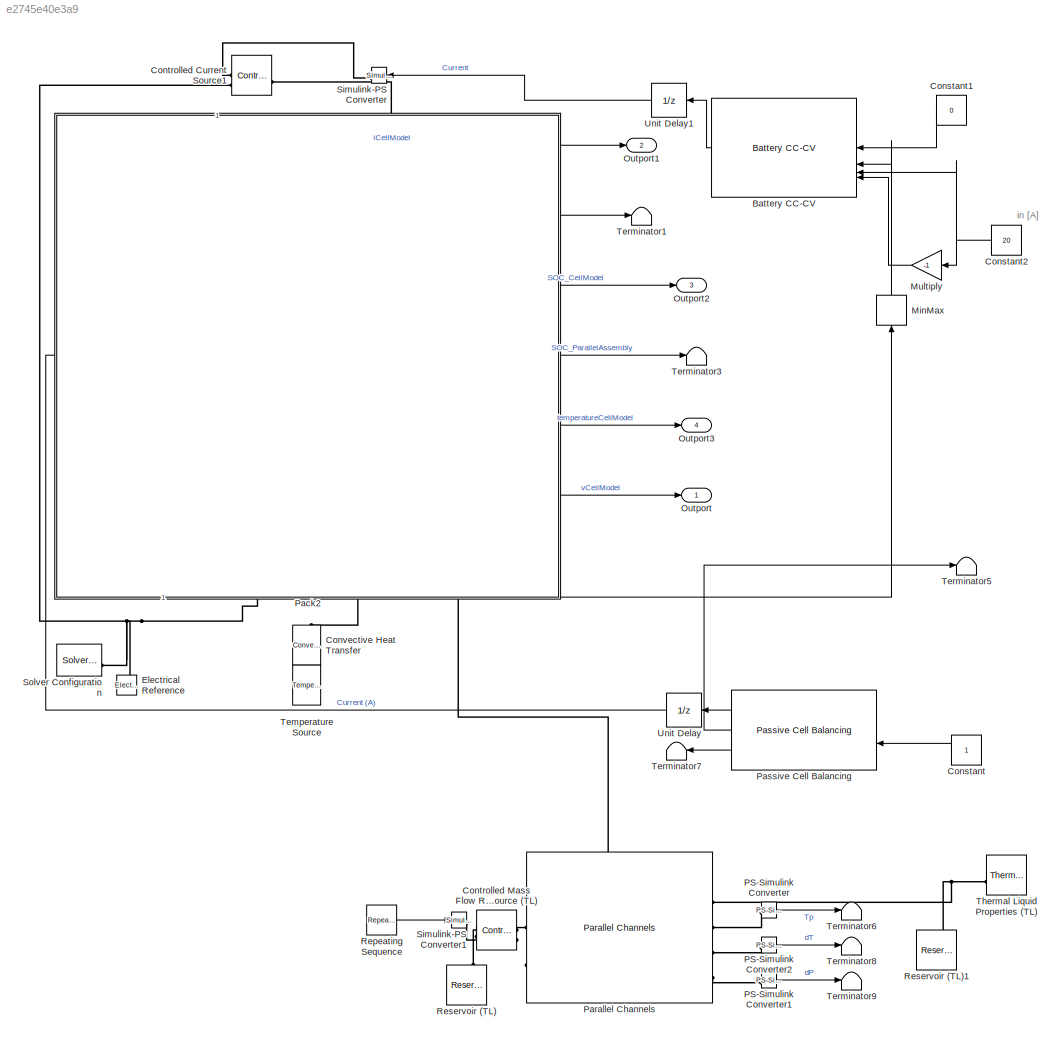
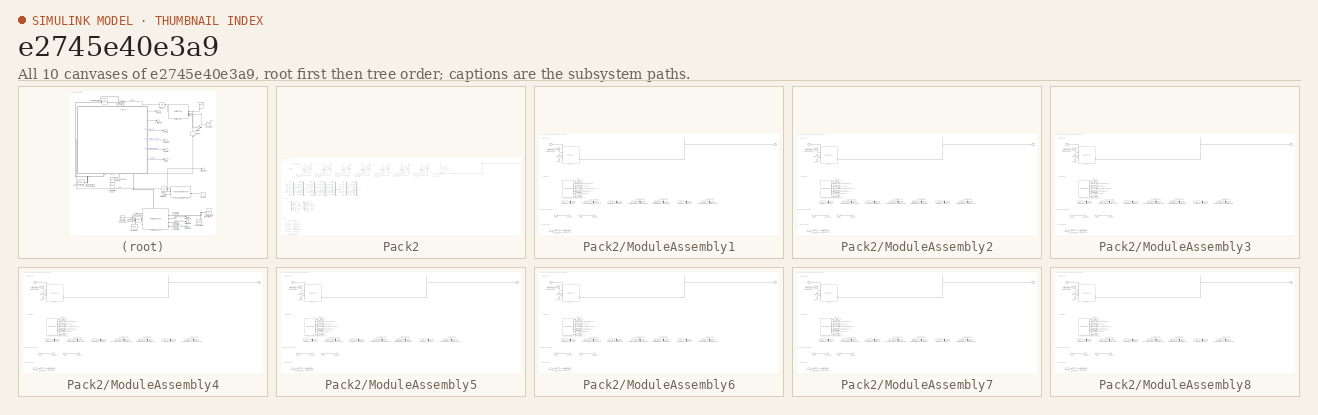
[diagram: thumbnail index - all 10 canvases of the model, root first then tree order]
MODEL slx_e2745e40e3a9
KIND model
CONFIG AbsTol = auto
CONFIG EnableMultiTasking = off
CONFIG FixedStep = auto
CONFIG MaxStep = auto
CONFIG MinStep = auto
CONFIG RelTol = 1e-3
CONFIG SampleTimeConstraint = Unconstrained
CONFIG SolverName = VariableStepAuto
CONFIG StartTime = 0.0
CONFIG StopTime = 2001
BLOCK [Reference] Battery CC-CV  REF=BatteryCurrentManagement/Battery CC-CV
  LibrarySourceBlock = batt_sl_lib/Current Management/Battery CC-CV
  NameLocation = top
  SourceBlock = BatteryCurrentManagement/Battery CC-CV
  SourceType = Battery CC-CV
BLOCK [Constant] Constant
  NameLocation = top
BLOCK [Constant] Constant1
  NameLocation = top
  Value = 0
BLOCK [Constant] Constant2
  NameLocation = top
  Value = 20
BLOCK [Reference] Controlled Current Source1  REF=fl_lib/Electrical/Electrical Sources/Controlled Current
Source
  SourceBlock = fl_lib/Electrical/Electrical Sources/Controlled Current\nSource
  SourceType = Controlled Current\nSource
BLOCK [Reference] Controlled Mass Flow Rate Source (TL)  REF=fl_lib/Thermal Liquid/Sources/Controlled Mass Flow
Rate Source (TL)
  SourceBlock = fl_lib/Thermal Liquid/Sources/Controlled Mass Flow\nRate Source (TL)
  SourceType = Controlled Mass Flow\nRate Source (TL)
BLOCK [Reference] Convective Heat Transfer  REF=fl_lib/Thermal/Thermal Elements/Convective Heat
Transfer
  NameLocation = left
  SourceBlock = fl_lib/Thermal/Thermal Elements/Convective Heat\nTransfer
  SourceType = Convective Heat\nTransfer
BLOCK [Reference] Electrical Reference  REF=fl_lib/Electrical/Electrical Elements/Electrical Reference
  NameLocation = right
  SourceBlock = fl_lib/Electrical/Electrical Elements/Electrical Reference
  SourceType = Electrical Reference
BLOCK [MinMax] MinMax
  Function = max
  NameLocation = right
BLOCK [Gain] Multiply
  Gain = -1
  NameLocation = top
BLOCK [Outport] Outport
BLOCK [Outport] Outport1
  Port = 2
BLOCK [Outport] Outport2
  Port = 3
BLOCK [Outport] Outport3
  Port = 4
BLOCK [Reference] PS-Simulink Converter  REF=nesl_utility/PS-Simulink
Converter
  SourceBlock = nesl_utility/PS-Simulink\nConverter
  SourceType = PS-Simulink\nConverter
BLOCK [Reference] PS-Simulink Converter1  REF=nesl_utility/PS-Simulink
Converter
  SourceBlock = nesl_utility/PS-Simulink\nConverter
  SourceType = PS-Simulink\nConverter
BLOCK [Reference] PS-Simulink Converter2  REF=nesl_utility/PS-Simulink
Converter
  SourceBlock = nesl_utility/PS-Simulink\nConverter
  SourceType = PS-Simulink\nConverter
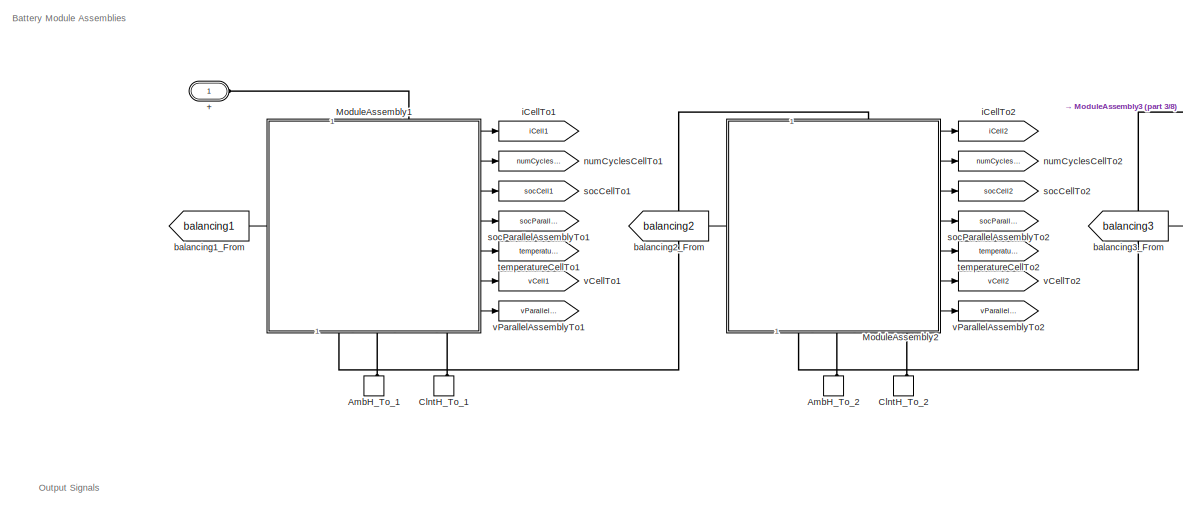
[diagram: Pack2 - part 1/8, top left region]
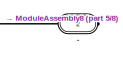
[diagram: Pack2 - part 2/8, top right region]
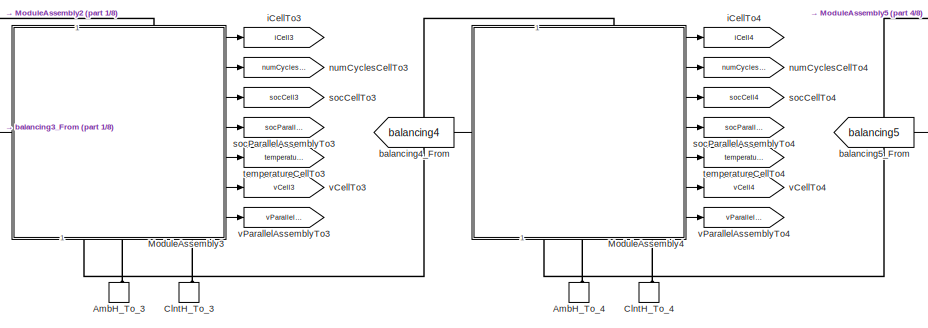
[diagram: Pack2 - part 3/8, top left region]
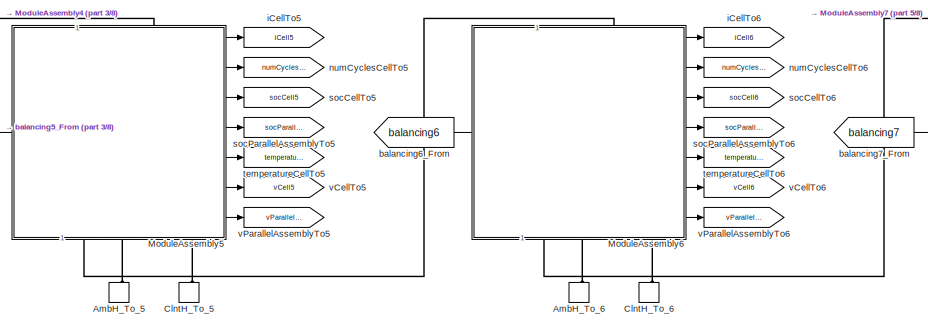
[diagram: Pack2 - part 4/8, top center region]
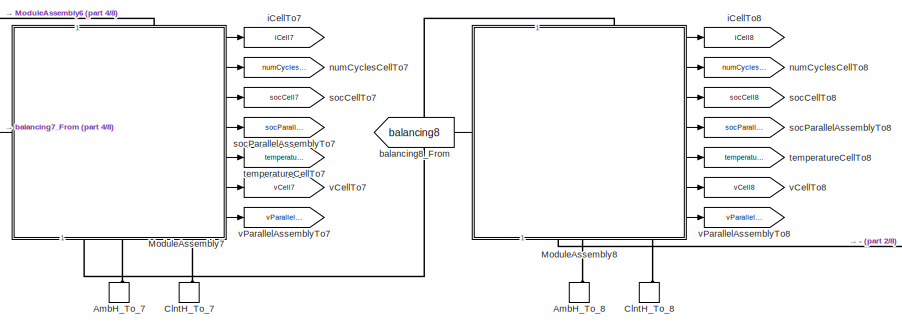
[diagram: Pack2 - part 5/8, top center region]
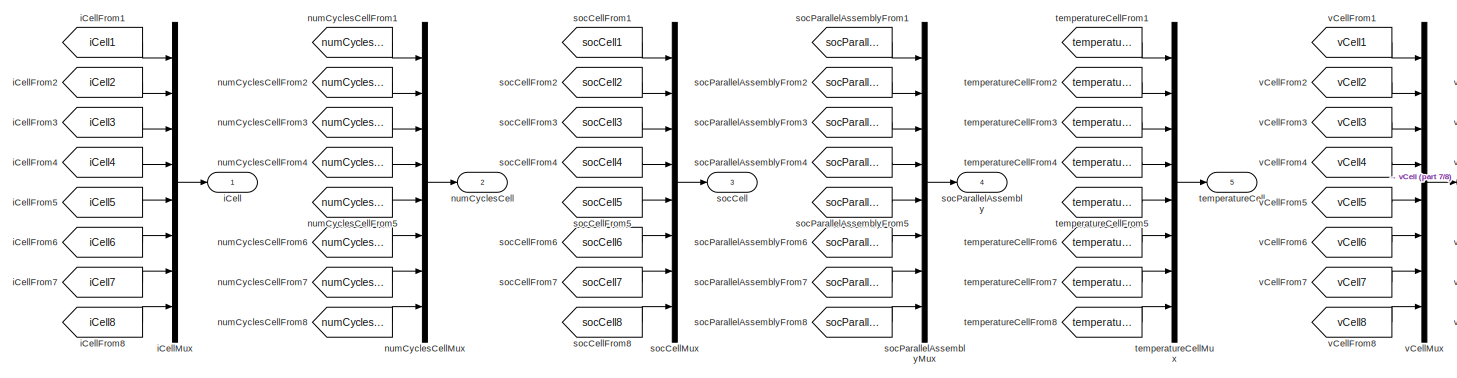
[diagram: Pack2 - part 6/8, middle left region]
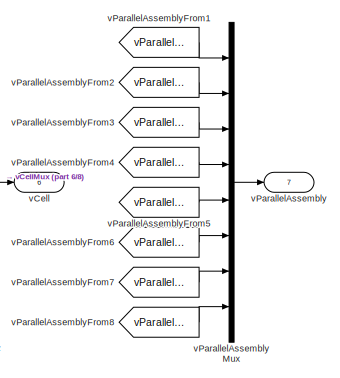
[diagram: Pack2 - part 7/8, middle left region]
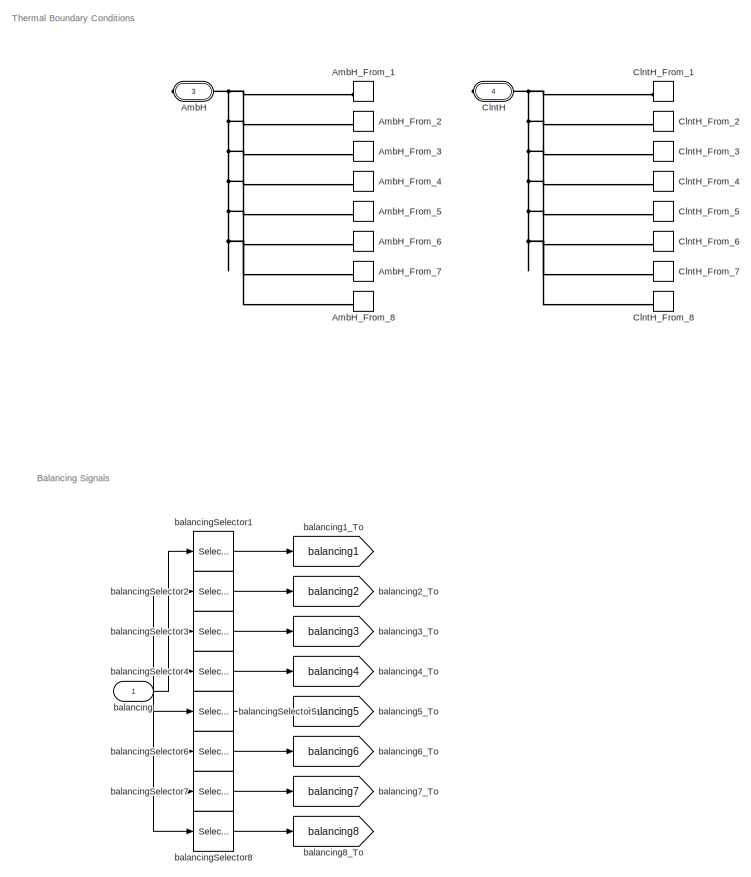
[diagram: Pack2 - part 8/8, bottom left region]
BLOCK [SubSystem] Pack2
  CopyFcn = battery_builder_rtmsupport('copyfcn',gcbh);
  LoadFcn = battery_builder_rtmsupport('loadfcn',gcbh);
  PortSchema = {"entries":[{"content":{"sides":[{"content":{"connectorIds":["LConn1"]},"type":"ConnectorPlacement.EquallySpacedRectSide","uuid":"eaf430c6-d28e-4a62-8b49-4d37c8edca5f"},{"content":{"connectorIds":["RConn1","RConn2","RConn3"],"side":"RIGHT"},"type":"ConnectorPlacement.EquallySpacedRectSide","uuid":"a95fddc1-7334-484a-9b4b-2e1f2360c9bb"},{"content":{"connectorIds":["In1"],"side":"TOP"},"type":"Conne...<+460ch>  <repeated x9 — deduplicated; at blocks: Pack2, ModuleAssembly1, ModuleAssembly2, ModuleAssembly3, ModuleAssembly4, ModuleAssembly5, ModuleAssembly6, ModuleAssembly7, ModuleAssembly8>
  PreCopyFcn = battery_builder_rtmsupport('precopyfcn',gcbh);
  PreDeleteFcn = battery_builder_rtmsupport('predeletefcn',gcbh);
BLOCK [PMIOPort] Pack2/+
  Side = Left
BLOCK [PMIOPort] Pack2/-
  Port = 2
  Side = Right
BLOCK [PMIOPort] Pack2/AmbH
  ConnectionType = Connection: foundation.thermal.thermal
  Port = 3
  Side = Right
BLOCK [ConnectionLabel] Pack2/AmbH_From_1
  Label = ambH_1
BLOCK [ConnectionLabel] Pack2/AmbH_From_2
  Label = ambH_2
BLOCK [ConnectionLabel] Pack2/AmbH_From_3
  Label = ambH_3
BLOCK [ConnectionLabel] Pack2/AmbH_From_4
  Label = ambH_4
BLOCK [ConnectionLabel] Pack2/AmbH_From_5
  Label = ambH_5
BLOCK [ConnectionLabel] Pack2/AmbH_From_6
  Label = ambH_6
BLOCK [ConnectionLabel] Pack2/AmbH_From_7
  Label = ambH_7
BLOCK [ConnectionLabel] Pack2/AmbH_From_8
  Label = ambH_8
BLOCK [ConnectionLabel] Pack2/AmbH_To_1
  Label = ambH_1
  NameLocation = right
BLOCK [ConnectionLabel] Pack2/AmbH_To_2
  Label = ambH_2
  NameLocation = right
BLOCK [ConnectionLabel] Pack2/AmbH_To_3
  Label = ambH_3
  NameLocation = right
BLOCK [ConnectionLabel] Pack2/AmbH_To_4
  Label = ambH_4
  NameLocation = right
BLOCK [ConnectionLabel] Pack2/AmbH_To_5
  Label = ambH_5
  NameLocation = right
BLOCK [ConnectionLabel] Pack2/AmbH_To_6
  Label = ambH_6
  NameLocation = right
BLOCK [ConnectionLabel] Pack2/AmbH_To_7
  Label = ambH_7
  NameLocation = right
BLOCK [ConnectionLabel] Pack2/AmbH_To_8
  Label = ambH_8
  NameLocation = right
BLOCK [PMIOPort] Pack2/ClntH
  ConnectionType = Connection: foundation.thermal.thermal
  Port = 4
  Side = Right
BLOCK [ConnectionLabel] Pack2/ClntH_From_1
  Label = clntH_1
BLOCK [ConnectionLabel] Pack2/ClntH_From_2
  Label = clntH_2
BLOCK [ConnectionLabel] Pack2/ClntH_From_3
  Label = clntH_3
BLOCK [ConnectionLabel] Pack2/ClntH_From_4
  Label = clntH_4
BLOCK [ConnectionLabel] Pack2/ClntH_From_5
  Label = clntH_5
BLOCK [ConnectionLabel] Pack2/ClntH_From_6
  Label = clntH_6
BLOCK [ConnectionLabel] Pack2/ClntH_From_7
  Label = clntH_7
BLOCK [ConnectionLabel] Pack2/ClntH_From_8
  Label = clntH_8
BLOCK [ConnectionLabel] Pack2/ClntH_To_1
  Label = clntH_1
  NameLocation = right
BLOCK [ConnectionLabel] Pack2/ClntH_To_2
  Label = clntH_2
  NameLocation = right
BLOCK [ConnectionLabel] Pack2/ClntH_To_3
  Label = clntH_3
  NameLocation = right
BLOCK [ConnectionLabel] Pack2/ClntH_To_4
  Label = clntH_4
  NameLocation = right
BLOCK [ConnectionLabel] Pack2/ClntH_To_5
  Label = clntH_5
  NameLocation = right
BLOCK [ConnectionLabel] Pack2/ClntH_To_6
  Label = clntH_6
  NameLocation = right
BLOCK [ConnectionLabel] Pack2/ClntH_To_7
  Label = clntH_7
  NameLocation = right
BLOCK [ConnectionLabel] Pack2/ClntH_To_8
  Label = clntH_8
  NameLocation = right
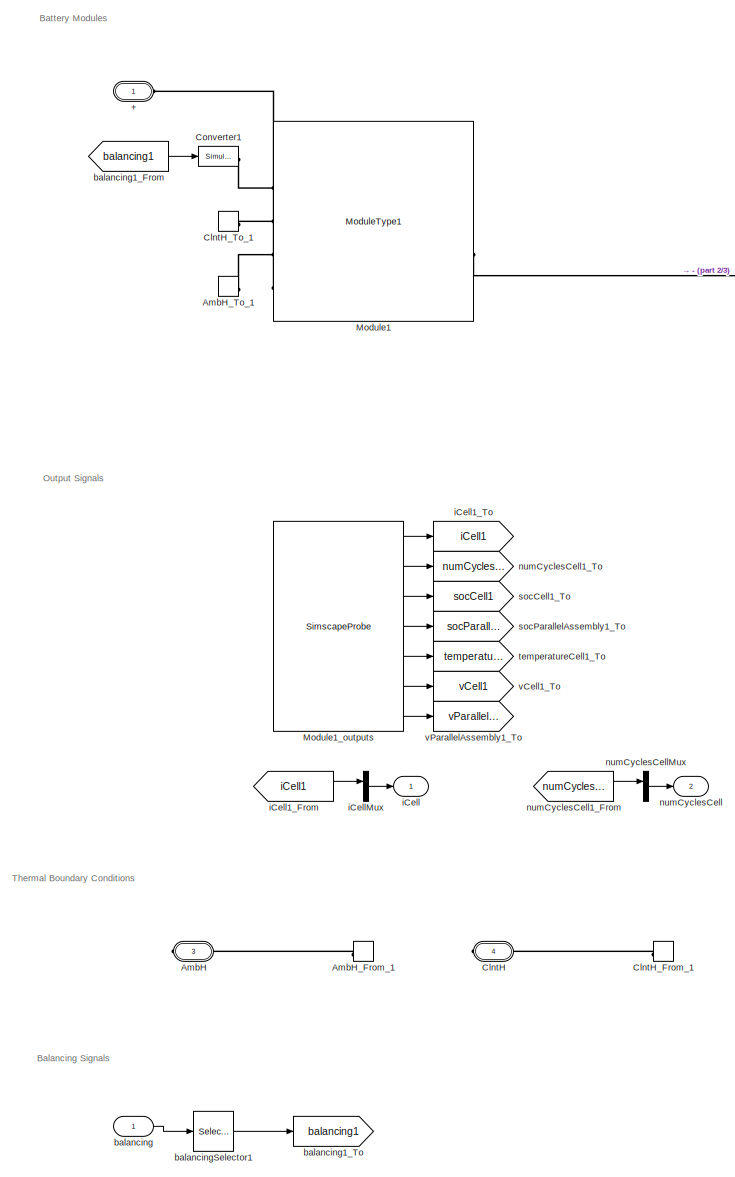
[diagram: Pack2/ModuleAssembly1 - part 1/3, left side, full height]
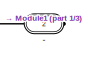
[diagram: Pack2/ModuleAssembly1 - part 2/3, top right region]
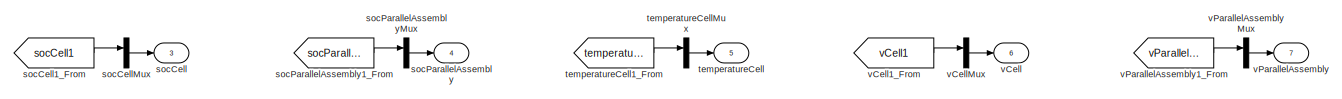
[diagram: Pack2/ModuleAssembly1 - part 3/3, bottom center region]
BLOCK [SubSystem] Pack2/ModuleAssembly1
  CopyFcn = battery_builder_rtmsupport('copyfcn',gcbh);
  LoadFcn = battery_builder_rtmsupport('loadfcn',gcbh);
  PreCopyFcn = battery_builder_rtmsupport('precopyfcn',gcbh);
  PreDeleteFcn = battery_builder_rtmsupport('predeletefcn',gcbh);
BLOCK [PMIOPort] Pack2/ModuleAssembly1/+
  Side = Left
BLOCK [PMIOPort] Pack2/ModuleAssembly1/-
  Port = 2
  Side = Right
BLOCK [PMIOPort] Pack2/ModuleAssembly1/AmbH
  ConnectionType = Connection: foundation.thermal.thermal
  Port = 3
  Side = Right
BLOCK [ConnectionLabel] Pack2/ModuleAssembly1/AmbH_From_1
  Label = ambH_1
BLOCK [ConnectionLabel] Pack2/ModuleAssembly1/AmbH_To_1
  Label = ambH_1
BLOCK [PMIOPort] Pack2/ModuleAssembly1/ClntH
  ConnectionType = Connection: foundation.thermal.thermal
  Port = 4
  Side = Right
BLOCK [ConnectionLabel] Pack2/ModuleAssembly1/ClntH_From_1
  Label = clntH_1
BLOCK [ConnectionLabel] Pack2/ModuleAssembly1/ClntH_To_1
  Label = clntH_1
BLOCK [Reference] Pack2/ModuleAssembly1/Converter1  REF=nesl_utility/Simulink-PS
Converter
  SourceBlock = nesl_utility/Simulink-PS\nConverter
  SourceType = Simulink-PS\nConverter
BLOCK [Reference] Pack2/ModuleAssembly1/Module1  REF=GD_Batterymodel_6_lib/Modules/ModuleType1
  SourceBlock = GD_Batterymodel_6_lib/Modules/ModuleType1
  SourceType = ModuleType1
BLOCK [SimscapeProbe] Pack2/ModuleAssembly1/Module1_outputs
  BoundBlock = 1380
  Variables = {iCell, numCyclesCell, socCell, socParallelAssembly, temperatureCell, vCell, vParallelAssembly}
BLOCK [Inport] Pack2/ModuleAssembly1/balancing
  PortDimensions = 14
BLOCK [From] Pack2/ModuleAssembly1/balancing1_From
  GotoTag = balancing1
BLOCK [Goto] Pack2/ModuleAssembly1/balancing1_To
  GotoTag = balancing1
BLOCK [Selector] Pack2/ModuleAssembly1/balancingSelector1
  IndexOptions = Index vector (dialog)
  Indices = [1   2   3   4   5   6   7   8   9  10  11  12  13  14]
  InputPortWidth = 14
  OutputSizes = 1
BLOCK [Outport] Pack2/ModuleAssembly1/iCell
BLOCK [From] Pack2/ModuleAssembly1/iCell1_From
  GotoTag = iCell1
BLOCK [Goto] Pack2/ModuleAssembly1/iCell1_To
  GotoTag = iCell1
BLOCK [Mux] Pack2/ModuleAssembly1/iCellMux
  DisplayOption = bar
  Inputs = 1
BLOCK [Outport] Pack2/ModuleAssembly1/numCyclesCell
  Port = 2
BLOCK [From] Pack2/ModuleAssembly1/numCyclesCell1_From
  GotoTag = numCyclesCell1
BLOCK [Goto] Pack2/ModuleAssembly1/numCyclesCell1_To
  GotoTag = numCyclesCell1
BLOCK [Mux] Pack2/ModuleAssembly1/numCyclesCellMux
  DisplayOption = bar
  Inputs = 1
BLOCK [Outport] Pack2/ModuleAssembly1/socCell
  Port = 3
BLOCK [From] Pack2/ModuleAssembly1/socCell1_From
  GotoTag = socCell1
BLOCK [Goto] Pack2/ModuleAssembly1/socCell1_To
  GotoTag = socCell1
BLOCK [Mux] Pack2/ModuleAssembly1/socCellMux
  DisplayOption = bar
  Inputs = 1
BLOCK [Outport] Pack2/ModuleAssembly1/socParallelAssembly
  Port = 4
BLOCK [From] Pack2/ModuleAssembly1/socParallelAssembly1_From
  GotoTag = socParallelAssembly1
BLOCK [Goto] Pack2/ModuleAssembly1/socParallelAssembly1_To
  GotoTag = socParallelAssembly1
BLOCK [Mux] Pack2/ModuleAssembly1/socParallelAssemblyMux
  DisplayOption = bar
  Inputs = 1
BLOCK [Outport] Pack2/ModuleAssembly1/temperatureCell
  Port = 5
BLOCK [From] Pack2/ModuleAssembly1/temperatureCell1_From
  GotoTag = temperatureCell1
BLOCK [Goto] Pack2/ModuleAssembly1/temperatureCell1_To
  GotoTag = temperatureCell1
BLOCK [Mux] Pack2/ModuleAssembly1/temperatureCellMux
  DisplayOption = bar
  Inputs = 1
BLOCK [Outport] Pack2/ModuleAssembly1/vCell
  Port = 6
BLOCK [From] Pack2/ModuleAssembly1/vCell1_From
  GotoTag = vCell1
BLOCK [Goto] Pack2/ModuleAssembly1/vCell1_To
  GotoTag = vCell1
BLOCK [Mux] Pack2/ModuleAssembly1/vCellMux
  DisplayOption = bar
  Inputs = 1
BLOCK [Outport] Pack2/ModuleAssembly1/vParallelAssembly
  Port = 7
BLOCK [From] Pack2/ModuleAssembly1/vParallelAssembly1_From
  GotoTag = vParallelAssembly1
BLOCK [Goto] Pack2/ModuleAssembly1/vParallelAssembly1_To
  GotoTag = vParallelAssembly1
BLOCK [Mux] Pack2/ModuleAssembly1/vParallelAssemblyMux
  DisplayOption = bar
  Inputs = 1
BLOCK [SubSystem] Pack2/ModuleAssembly2
  CopyFcn = battery_builder_rtmsupport('copyfcn',gcbh);
  LoadFcn = battery_builder_rtmsupport('loadfcn',gcbh);
  PreCopyFcn = battery_builder_rtmsupport('precopyfcn',gcbh);
  PreDeleteFcn = battery_builder_rtmsupport('predeletefcn',gcbh);
BLOCK [PMIOPort] Pack2/ModuleAssembly2/+
  Side = Left
BLOCK [PMIOPort] Pack2/ModuleAssembly2/-
  Port = 2
  Side = Right
BLOCK [PMIOPort] Pack2/ModuleAssembly2/AmbH
  ConnectionType = Connection: foundation.thermal.thermal
  Port = 3
  Side = Right
BLOCK [ConnectionLabel] Pack2/ModuleAssembly2/AmbH_From_1
  Label = ambH_1
BLOCK [ConnectionLabel] Pack2/ModuleAssembly2/AmbH_To_1
  Label = ambH_1
BLOCK [PMIOPort] Pack2/ModuleAssembly2/ClntH
  ConnectionType = Connection: foundation.thermal.thermal
  Port = 4
  Side = Right
BLOCK [ConnectionLabel] Pack2/ModuleAssembly2/ClntH_From_1
  Label = clntH_1
BLOCK [ConnectionLabel] Pack2/ModuleAssembly2/ClntH_To_1
  Label = clntH_1
BLOCK [Reference] Pack2/ModuleAssembly2/Converter1  REF=nesl_utility/Simulink-PS
Converter
  SourceBlock = nesl_utility/Simulink-PS\nConverter
  SourceType = Simulink-PS\nConverter
BLOCK [Reference] Pack2/ModuleAssembly2/Module1  REF=GD_Batterymodel_6_lib/Modules/ModuleType1
  SourceBlock = GD_Batterymodel_6_lib/Modules/ModuleType1
  SourceType = ModuleType1
BLOCK [SimscapeProbe] Pack2/ModuleAssembly2/Module1_outputs
  BoundBlock = 1428
  Variables = {iCell, numCyclesCell, socCell, socParallelAssembly, temperatureCell, vCell, vParallelAssembly}
BLOCK [Inport] Pack2/ModuleAssembly2/balancing
  PortDimensions = 14
BLOCK [From] Pack2/ModuleAssembly2/balancing1_From
  GotoTag = balancing1
BLOCK [Goto] Pack2/ModuleAssembly2/balancing1_To
  GotoTag = balancing1
BLOCK [Selector] Pack2/ModuleAssembly2/balancingSelector1
  IndexOptions = Index vector (dialog)
  Indices = [1   2   3   4   5   6   7   8   9  10  11  12  13  14]
  InputPortWidth = 14
  OutputSizes = 1
BLOCK [Outport] Pack2/ModuleAssembly2/iCell
BLOCK [From] Pack2/ModuleAssembly2/iCell1_From
  GotoTag = iCell1
BLOCK [Goto] Pack2/ModuleAssembly2/iCell1_To
  GotoTag = iCell1
BLOCK [Mux] Pack2/ModuleAssembly2/iCellMux
  DisplayOption = bar
  Inputs = 1
BLOCK [Outport] Pack2/ModuleAssembly2/numCyclesCell
  Port = 2
BLOCK [From] Pack2/ModuleAssembly2/numCyclesCell1_From
  GotoTag = numCyclesCell1
BLOCK [Goto] Pack2/ModuleAssembly2/numCyclesCell1_To
  GotoTag = numCyclesCell1
BLOCK [Mux] Pack2/ModuleAssembly2/numCyclesCellMux
  DisplayOption = bar
  Inputs = 1
BLOCK [Outport] Pack2/ModuleAssembly2/socCell
  Port = 3
BLOCK [From] Pack2/ModuleAssembly2/socCell1_From
  GotoTag = socCell1
BLOCK [Goto] Pack2/ModuleAssembly2/socCell1_To
  GotoTag = socCell1
BLOCK [Mux] Pack2/ModuleAssembly2/socCellMux
  DisplayOption = bar
  Inputs = 1
BLOCK [Outport] Pack2/ModuleAssembly2/socParallelAssembly
  Port = 4
BLOCK [From] Pack2/ModuleAssembly2/socParallelAssembly1_From
  GotoTag = socParallelAssembly1
BLOCK [Goto] Pack2/ModuleAssembly2/socParallelAssembly1_To
  GotoTag = socParallelAssembly1
BLOCK [Mux] Pack2/ModuleAssembly2/socParallelAssemblyMux
  DisplayOption = bar
  Inputs = 1
BLOCK [Outport] Pack2/ModuleAssembly2/temperatureCell
  Port = 5
BLOCK [From] Pack2/ModuleAssembly2/temperatureCell1_From
  GotoTag = temperatureCell1
BLOCK [Goto] Pack2/ModuleAssembly2/temperatureCell1_To
  GotoTag = temperatureCell1
BLOCK [Mux] Pack2/ModuleAssembly2/temperatureCellMux
  DisplayOption = bar
  Inputs = 1
BLOCK [Outport] Pack2/ModuleAssembly2/vCell
  Port = 6
BLOCK [From] Pack2/ModuleAssembly2/vCell1_From
  GotoTag = vCell1
BLOCK [Goto] Pack2/ModuleAssembly2/vCell1_To
  GotoTag = vCell1
BLOCK [Mux] Pack2/ModuleAssembly2/vCellMux
  DisplayOption = bar
  Inputs = 1
BLOCK [Outport] Pack2/ModuleAssembly2/vParallelAssembly
  Port = 7
BLOCK [From] Pack2/ModuleAssembly2/vParallelAssembly1_From
  GotoTag = vParallelAssembly1
BLOCK [Goto] Pack2/ModuleAssembly2/vParallelAssembly1_To
  GotoTag = vParallelAssembly1
BLOCK [Mux] Pack2/ModuleAssembly2/vParallelAssemblyMux
  DisplayOption = bar
  Inputs = 1
BLOCK [SubSystem] Pack2/ModuleAssembly3
  CopyFcn = battery_builder_rtmsupport('copyfcn',gcbh);
  LoadFcn = battery_builder_rtmsupport('loadfcn',gcbh);
  PreCopyFcn = battery_builder_rtmsupport('precopyfcn',gcbh);
  PreDeleteFcn = battery_builder_rtmsupport('predeletefcn',gcbh);
BLOCK [PMIOPort] Pack2/ModuleAssembly3/+
  Side = Left
BLOCK [PMIOPort] Pack2/ModuleAssembly3/-
  Port = 2
  Side = Right
BLOCK [PMIOPort] Pack2/ModuleAssembly3/AmbH
  ConnectionType = Connection: foundation.thermal.thermal
  Port = 3
  Side = Right
BLOCK [ConnectionLabel] Pack2/ModuleAssembly3/AmbH_From_1
  Label = ambH_1
BLOCK [ConnectionLabel] Pack2/ModuleAssembly3/AmbH_To_1
  Label = ambH_1
BLOCK [PMIOPort] Pack2/ModuleAssembly3/ClntH
  ConnectionType = Connection: foundation.thermal.thermal
  Port = 4
  Side = Right
BLOCK [ConnectionLabel] Pack2/ModuleAssembly3/ClntH_From_1
  Label = clntH_1
BLOCK [ConnectionLabel] Pack2/ModuleAssembly3/ClntH_To_1
  Label = clntH_1
BLOCK [Reference] Pack2/ModuleAssembly3/Converter1  REF=nesl_utility/Simulink-PS
Converter
  SourceBlock = nesl_utility/Simulink-PS\nConverter
  SourceType = Simulink-PS\nConverter
BLOCK [Reference] Pack2/ModuleAssembly3/Module1  REF=GD_Batterymodel_6_lib/Modules/ModuleType1
  SourceBlock = GD_Batterymodel_6_lib/Modules/ModuleType1
  SourceType = ModuleType1
BLOCK [SimscapeProbe] Pack2/ModuleAssembly3/Module1_outputs
  BoundBlock = 1476
  Variables = {iCell, numCyclesCell, socCell, socParallelAssembly, temperatureCell, vCell, vParallelAssembly}
BLOCK [Inport] Pack2/ModuleAssembly3/balancing
  PortDimensions = 14
BLOCK [From] Pack2/ModuleAssembly3/balancing1_From
  GotoTag = balancing1
BLOCK [Goto] Pack2/ModuleAssembly3/balancing1_To
  GotoTag = balancing1
BLOCK [Selector] Pack2/ModuleAssembly3/balancingSelector1
  IndexOptions = Index vector (dialog)
  Indices = [1   2   3   4   5   6   7   8   9  10  11  12  13  14]
  InputPortWidth = 14
  OutputSizes = 1
BLOCK [Outport] Pack2/ModuleAssembly3/iCell
BLOCK [From] Pack2/ModuleAssembly3/iCell1_From
  GotoTag = iCell1
BLOCK [Goto] Pack2/ModuleAssembly3/iCell1_To
  GotoTag = iCell1
BLOCK [Mux] Pack2/ModuleAssembly3/iCellMux
  DisplayOption = bar
  Inputs = 1
BLOCK [Outport] Pack2/ModuleAssembly3/numCyclesCell
  Port = 2
BLOCK [From] Pack2/ModuleAssembly3/numCyclesCell1_From
  GotoTag = numCyclesCell1
BLOCK [Goto] Pack2/ModuleAssembly3/numCyclesCell1_To
  GotoTag = numCyclesCell1
BLOCK [Mux] Pack2/ModuleAssembly3/numCyclesCellMux
  DisplayOption = bar
  Inputs = 1
BLOCK [Outport] Pack2/ModuleAssembly3/socCell
  Port = 3
BLOCK [From] Pack2/ModuleAssembly3/socCell1_From
  GotoTag = socCell1
BLOCK [Goto] Pack2/ModuleAssembly3/socCell1_To
  GotoTag = socCell1
BLOCK [Mux] Pack2/ModuleAssembly3/socCellMux
  DisplayOption = bar
  Inputs = 1
BLOCK [Outport] Pack2/ModuleAssembly3/socParallelAssembly
  Port = 4
BLOCK [From] Pack2/ModuleAssembly3/socParallelAssembly1_From
  GotoTag = socParallelAssembly1
BLOCK [Goto] Pack2/ModuleAssembly3/socParallelAssembly1_To
  GotoTag = socParallelAssembly1
BLOCK [Mux] Pack2/ModuleAssembly3/socParallelAssemblyMux
  DisplayOption = bar
  Inputs = 1
BLOCK [Outport] Pack2/ModuleAssembly3/temperatureCell
  Port = 5
BLOCK [From] Pack2/ModuleAssembly3/temperatureCell1_From
  GotoTag = temperatureCell1
BLOCK [Goto] Pack2/ModuleAssembly3/temperatureCell1_To
  GotoTag = temperatureCell1
BLOCK [Mux] Pack2/ModuleAssembly3/temperatureCellMux
  DisplayOption = bar
  Inputs = 1
BLOCK [Outport] Pack2/ModuleAssembly3/vCell
  Port = 6
BLOCK [From] Pack2/ModuleAssembly3/vCell1_From
  GotoTag = vCell1
BLOCK [Goto] Pack2/ModuleAssembly3/vCell1_To
  GotoTag = vCell1
BLOCK [Mux] Pack2/ModuleAssembly3/vCellMux
  DisplayOption = bar
  Inputs = 1
BLOCK [Outport] Pack2/ModuleAssembly3/vParallelAssembly
  Port = 7
BLOCK [From] Pack2/ModuleAssembly3/vParallelAssembly1_From
  GotoTag = vParallelAssembly1
BLOCK [Goto] Pack2/ModuleAssembly3/vParallelAssembly1_To
  GotoTag = vParallelAssembly1
BLOCK [Mux] Pack2/ModuleAssembly3/vParallelAssemblyMux
  DisplayOption = bar
  Inputs = 1
BLOCK [SubSystem] Pack2/ModuleAssembly4
  CopyFcn = battery_builder_rtmsupport('copyfcn',gcbh);
  LoadFcn = battery_builder_rtmsupport('loadfcn',gcbh);
  PreCopyFcn = battery_builder_rtmsupport('precopyfcn',gcbh);
  PreDeleteFcn = battery_builder_rtmsupport('predeletefcn',gcbh);
BLOCK [PMIOPort] Pack2/ModuleAssembly4/+
  Side = Left
BLOCK [PMIOPort] Pack2/ModuleAssembly4/-
  Port = 2
  Side = Right
BLOCK [PMIOPort] Pack2/ModuleAssembly4/AmbH
  ConnectionType = Connection: foundation.thermal.thermal
  Port = 3
  Side = Right
BLOCK [ConnectionLabel] Pack2/ModuleAssembly4/AmbH_From_1
  Label = ambH_1
BLOCK [ConnectionLabel] Pack2/ModuleAssembly4/AmbH_To_1
  Label = ambH_1
BLOCK [PMIOPort] Pack2/ModuleAssembly4/ClntH
  ConnectionType = Connection: foundation.thermal.thermal
  Port = 4
  Side = Right
BLOCK [ConnectionLabel] Pack2/ModuleAssembly4/ClntH_From_1
  Label = clntH_1
BLOCK [ConnectionLabel] Pack2/ModuleAssembly4/ClntH_To_1
  Label = clntH_1
BLOCK [Reference] Pack2/ModuleAssembly4/Converter1  REF=nesl_utility/Simulink-PS
Converter
  SourceBlock = nesl_utility/Simulink-PS\nConverter
  SourceType = Simulink-PS\nConverter
BLOCK [Reference] Pack2/ModuleAssembly4/Module1  REF=GD_Batterymodel_6_lib/Modules/ModuleType1
  SourceBlock = GD_Batterymodel_6_lib/Modules/ModuleType1
  SourceType = ModuleType1
BLOCK [SimscapeProbe] Pack2/ModuleAssembly4/Module1_outputs
  BoundBlock = 1524
  Variables = {iCell, numCyclesCell, socCell, socParallelAssembly, temperatureCell, vCell, vParallelAssembly}
BLOCK [Inport] Pack2/ModuleAssembly4/balancing
  PortDimensions = 14
BLOCK [From] Pack2/ModuleAssembly4/balancing1_From
  GotoTag = balancing1
BLOCK [Goto] Pack2/ModuleAssembly4/balancing1_To
  GotoTag = balancing1
BLOCK [Selector] Pack2/ModuleAssembly4/balancingSelector1
  IndexOptions = Index vector (dialog)
  Indices = [1   2   3   4   5   6   7   8   9  10  11  12  13  14]
  InputPortWidth = 14
  OutputSizes = 1
BLOCK [Outport] Pack2/ModuleAssembly4/iCell
BLOCK [From] Pack2/ModuleAssembly4/iCell1_From
  GotoTag = iCell1
BLOCK [Goto] Pack2/ModuleAssembly4/iCell1_To
  GotoTag = iCell1
BLOCK [Mux] Pack2/ModuleAssembly4/iCellMux
  DisplayOption = bar
  Inputs = 1
BLOCK [Outport] Pack2/ModuleAssembly4/numCyclesCell
  Port = 2
BLOCK [From] Pack2/ModuleAssembly4/numCyclesCell1_From
  GotoTag = numCyclesCell1
BLOCK [Goto] Pack2/ModuleAssembly4/numCyclesCell1_To
  GotoTag = numCyclesCell1
BLOCK [Mux] Pack2/ModuleAssembly4/numCyclesCellMux
  DisplayOption = bar
  Inputs = 1
BLOCK [Outport] Pack2/ModuleAssembly4/socCell
  Port = 3
BLOCK [From] Pack2/ModuleAssembly4/socCell1_From
  GotoTag = socCell1
BLOCK [Goto] Pack2/ModuleAssembly4/socCell1_To
  GotoTag = socCell1
BLOCK [Mux] Pack2/ModuleAssembly4/socCellMux
  DisplayOption = bar
  Inputs = 1
BLOCK [Outport] Pack2/ModuleAssembly4/socParallelAssembly
  Port = 4
BLOCK [From] Pack2/ModuleAssembly4/socParallelAssembly1_From
  GotoTag = socParallelAssembly1
BLOCK [Goto] Pack2/ModuleAssembly4/socParallelAssembly1_To
  GotoTag = socParallelAssembly1
BLOCK [Mux] Pack2/ModuleAssembly4/socParallelAssemblyMux
  DisplayOption = bar
  Inputs = 1
BLOCK [Outport] Pack2/ModuleAssembly4/temperatureCell
  Port = 5
BLOCK [From] Pack2/ModuleAssembly4/temperatureCell1_From
  GotoTag = temperatureCell1
BLOCK [Goto] Pack2/ModuleAssembly4/temperatureCell1_To
  GotoTag = temperatureCell1
BLOCK [Mux] Pack2/ModuleAssembly4/temperatureCellMux
  DisplayOption = bar
  Inputs = 1
BLOCK [Outport] Pack2/ModuleAssembly4/vCell
  Port = 6
BLOCK [From] Pack2/ModuleAssembly4/vCell1_From
  GotoTag = vCell1
BLOCK [Goto] Pack2/ModuleAssembly4/vCell1_To
  GotoTag = vCell1
BLOCK [Mux] Pack2/ModuleAssembly4/vCellMux
  DisplayOption = bar
  Inputs = 1
BLOCK [Outport] Pack2/ModuleAssembly4/vParallelAssembly
  Port = 7
BLOCK [From] Pack2/ModuleAssembly4/vParallelAssembly1_From
  GotoTag = vParallelAssembly1
BLOCK [Goto] Pack2/ModuleAssembly4/vParallelAssembly1_To
  GotoTag = vParallelAssembly1
BLOCK [Mux] Pack2/ModuleAssembly4/vParallelAssemblyMux
  DisplayOption = bar
  Inputs = 1
BLOCK [SubSystem] Pack2/ModuleAssembly5
  CopyFcn = battery_builder_rtmsupport('copyfcn',gcbh);
  LoadFcn = battery_builder_rtmsupport('loadfcn',gcbh);
  PreCopyFcn = battery_builder_rtmsupport('precopyfcn',gcbh);
  PreDeleteFcn = battery_builder_rtmsupport('predeletefcn',gcbh);
BLOCK [PMIOPort] Pack2/ModuleAssembly5/+
  Side = Left
BLOCK [PMIOPort] Pack2/ModuleAssembly5/-
  Port = 2
  Side = Right
BLOCK [PMIOPort] Pack2/ModuleAssembly5/AmbH
  ConnectionType = Connection: foundation.thermal.thermal
  Port = 3
  Side = Right
BLOCK [ConnectionLabel] Pack2/ModuleAssembly5/AmbH_From_1
  Label = ambH_1
BLOCK [ConnectionLabel] Pack2/ModuleAssembly5/AmbH_To_1
  Label = ambH_1
BLOCK [PMIOPort] Pack2/ModuleAssembly5/ClntH
  ConnectionType = Connection: foundation.thermal.thermal
  Port = 4
  Side = Right
BLOCK [ConnectionLabel] Pack2/ModuleAssembly5/ClntH_From_1
  Label = clntH_1
BLOCK [ConnectionLabel] Pack2/ModuleAssembly5/ClntH_To_1
  Label = clntH_1
BLOCK [Reference] Pack2/ModuleAssembly5/Converter1  REF=nesl_utility/Simulink-PS
Converter
  SourceBlock = nesl_utility/Simulink-PS\nConverter
  SourceType = Simulink-PS\nConverter
BLOCK [Reference] Pack2/ModuleAssembly5/Module1  REF=GD_Batterymodel_6_lib/Modules/ModuleType1
  SourceBlock = GD_Batterymodel_6_lib/Modules/ModuleType1
  SourceType = ModuleType1
BLOCK [SimscapeProbe] Pack2/ModuleAssembly5/Module1_outputs
  BoundBlock = 1572
  Variables = {iCell, numCyclesCell, socCell, socParallelAssembly, temperatureCell, vCell, vParallelAssembly}
BLOCK [Inport] Pack2/ModuleAssembly5/balancing
  PortDimensions = 14
BLOCK [From] Pack2/ModuleAssembly5/balancing1_From
  GotoTag = balancing1
BLOCK [Goto] Pack2/ModuleAssembly5/balancing1_To
  GotoTag = balancing1
BLOCK [Selector] Pack2/ModuleAssembly5/balancingSelector1
  IndexOptions = Index vector (dialog)
  Indices = [1   2   3   4   5   6   7   8   9  10  11  12  13  14]
  InputPortWidth = 14
  OutputSizes = 1
BLOCK [Outport] Pack2/ModuleAssembly5/iCell
BLOCK [From] Pack2/ModuleAssembly5/iCell1_From
  GotoTag = iCell1
BLOCK [Goto] Pack2/ModuleAssembly5/iCell1_To
  GotoTag = iCell1
BLOCK [Mux] Pack2/ModuleAssembly5/iCellMux
  DisplayOption = bar
  Inputs = 1
BLOCK [Outport] Pack2/ModuleAssembly5/numCyclesCell
  Port = 2
BLOCK [From] Pack2/ModuleAssembly5/numCyclesCell1_From
  GotoTag = numCyclesCell1
BLOCK [Goto] Pack2/ModuleAssembly5/numCyclesCell1_To
  GotoTag = numCyclesCell1
BLOCK [Mux] Pack2/ModuleAssembly5/numCyclesCellMux
  DisplayOption = bar
  Inputs = 1
BLOCK [Outport] Pack2/ModuleAssembly5/socCell
  Port = 3
BLOCK [From] Pack2/ModuleAssembly5/socCell1_From
  GotoTag = socCell1
BLOCK [Goto] Pack2/ModuleAssembly5/socCell1_To
  GotoTag = socCell1
BLOCK [Mux] Pack2/ModuleAssembly5/socCellMux
  DisplayOption = bar
  Inputs = 1
BLOCK [Outport] Pack2/ModuleAssembly5/socParallelAssembly
  Port = 4
BLOCK [From] Pack2/ModuleAssembly5/socParallelAssembly1_From
  GotoTag = socParallelAssembly1
BLOCK [Goto] Pack2/ModuleAssembly5/socParallelAssembly1_To
  GotoTag = socParallelAssembly1
BLOCK [Mux] Pack2/ModuleAssembly5/socParallelAssemblyMux
  DisplayOption = bar
  Inputs = 1
BLOCK [Outport] Pack2/ModuleAssembly5/temperatureCell
  Port = 5
BLOCK [From] Pack2/ModuleAssembly5/temperatureCell1_From
  GotoTag = temperatureCell1
BLOCK [Goto] Pack2/ModuleAssembly5/temperatureCell1_To
  GotoTag = temperatureCell1
BLOCK [Mux] Pack2/ModuleAssembly5/temperatureCellMux
  DisplayOption = bar
  Inputs = 1
BLOCK [Outport] Pack2/ModuleAssembly5/vCell
  Port = 6
BLOCK [From] Pack2/ModuleAssembly5/vCell1_From
  GotoTag = vCell1
BLOCK [Goto] Pack2/ModuleAssembly5/vCell1_To
  GotoTag = vCell1
BLOCK [Mux] Pack2/ModuleAssembly5/vCellMux
  DisplayOption = bar
  Inputs = 1
BLOCK [Outport] Pack2/ModuleAssembly5/vParallelAssembly
  Port = 7
BLOCK [From] Pack2/ModuleAssembly5/vParallelAssembly1_From
  GotoTag = vParallelAssembly1
BLOCK [Goto] Pack2/ModuleAssembly5/vParallelAssembly1_To
  GotoTag = vParallelAssembly1
BLOCK [Mux] Pack2/ModuleAssembly5/vParallelAssemblyMux
  DisplayOption = bar
  Inputs = 1
BLOCK [SubSystem] Pack2/ModuleAssembly6
  CopyFcn = battery_builder_rtmsupport('copyfcn',gcbh);
  LoadFcn = battery_builder_rtmsupport('loadfcn',gcbh);
  PreCopyFcn = battery_builder_rtmsupport('precopyfcn',gcbh);
  PreDeleteFcn = battery_builder_rtmsupport('predeletefcn',gcbh);
BLOCK [PMIOPort] Pack2/ModuleAssembly6/+
  Side = Left
BLOCK [PMIOPort] Pack2/ModuleAssembly6/-
  Port = 2
  Side = Right
BLOCK [PMIOPort] Pack2/ModuleAssembly6/AmbH
  ConnectionType = Connection: foundation.thermal.thermal
  Port = 3
  Side = Right
BLOCK [ConnectionLabel] Pack2/ModuleAssembly6/AmbH_From_1
  Label = ambH_1
BLOCK [ConnectionLabel] Pack2/ModuleAssembly6/AmbH_To_1
  Label = ambH_1
BLOCK [PMIOPort] Pack2/ModuleAssembly6/ClntH
  ConnectionType = Connection: foundation.thermal.thermal
  Port = 4
  Side = Right
BLOCK [ConnectionLabel] Pack2/ModuleAssembly6/ClntH_From_1
  Label = clntH_1
BLOCK [ConnectionLabel] Pack2/ModuleAssembly6/ClntH_To_1
  Label = clntH_1
BLOCK [Reference] Pack2/ModuleAssembly6/Converter1  REF=nesl_utility/Simulink-PS
Converter
  SourceBlock = nesl_utility/Simulink-PS\nConverter
  SourceType = Simulink-PS\nConverter
BLOCK [Reference] Pack2/ModuleAssembly6/Module1  REF=GD_Batterymodel_6_lib/Modules/ModuleType1
  SourceBlock = GD_Batterymodel_6_lib/Modules/ModuleType1
  SourceType = ModuleType1
BLOCK [SimscapeProbe] Pack2/ModuleAssembly6/Module1_outputs
  BoundBlock = 1620
  Variables = {iCell, numCyclesCell, socCell, socParallelAssembly, temperatureCell, vCell, vParallelAssembly}
BLOCK [Inport] Pack2/ModuleAssembly6/balancing
  PortDimensions = 14
BLOCK [From] Pack2/ModuleAssembly6/balancing1_From
  GotoTag = balancing1
BLOCK [Goto] Pack2/ModuleAssembly6/balancing1_To
  GotoTag = balancing1
BLOCK [Selector] Pack2/ModuleAssembly6/balancingSelector1
  IndexOptions = Index vector (dialog)
  Indices = [1   2   3   4   5   6   7   8   9  10  11  12  13  14]
  InputPortWidth = 14
  OutputSizes = 1
BLOCK [Outport] Pack2/ModuleAssembly6/iCell
BLOCK [From] Pack2/ModuleAssembly6/iCell1_From
  GotoTag = iCell1
BLOCK [Goto] Pack2/ModuleAssembly6/iCell1_To
  GotoTag = iCell1
BLOCK [Mux] Pack2/ModuleAssembly6/iCellMux
  DisplayOption = bar
  Inputs = 1
BLOCK [Outport] Pack2/ModuleAssembly6/numCyclesCell
  Port = 2
BLOCK [From] Pack2/ModuleAssembly6/numCyclesCell1_From
  GotoTag = numCyclesCell1
BLOCK [Goto] Pack2/ModuleAssembly6/numCyclesCell1_To
  GotoTag = numCyclesCell1
BLOCK [Mux] Pack2/ModuleAssembly6/numCyclesCellMux
  DisplayOption = bar
  Inputs = 1
BLOCK [Outport] Pack2/ModuleAssembly6/socCell
  Port = 3
BLOCK [From] Pack2/ModuleAssembly6/socCell1_From
  GotoTag = socCell1
BLOCK [Goto] Pack2/ModuleAssembly6/socCell1_To
  GotoTag = socCell1
BLOCK [Mux] Pack2/ModuleAssembly6/socCellMux
  DisplayOption = bar
  Inputs = 1
BLOCK [Outport] Pack2/ModuleAssembly6/socParallelAssembly
  Port = 4
BLOCK [From] Pack2/ModuleAssembly6/socParallelAssembly1_From
  GotoTag = socParallelAssembly1
BLOCK [Goto] Pack2/ModuleAssembly6/socParallelAssembly1_To
  GotoTag = socParallelAssembly1
BLOCK [Mux] Pack2/ModuleAssembly6/socParallelAssemblyMux
  DisplayOption = bar
  Inputs = 1
BLOCK [Outport] Pack2/ModuleAssembly6/temperatureCell
  Port = 5
BLOCK [From] Pack2/ModuleAssembly6/temperatureCell1_From
  GotoTag = temperatureCell1
BLOCK [Goto] Pack2/ModuleAssembly6/temperatureCell1_To
  GotoTag = temperatureCell1
BLOCK [Mux] Pack2/ModuleAssembly6/temperatureCellMux
  DisplayOption = bar
  Inputs = 1
BLOCK [Outport] Pack2/ModuleAssembly6/vCell
  Port = 6
BLOCK [From] Pack2/ModuleAssembly6/vCell1_From
  GotoTag = vCell1
BLOCK [Goto] Pack2/ModuleAssembly6/vCell1_To
  GotoTag = vCell1
BLOCK [Mux] Pack2/ModuleAssembly6/vCellMux
  DisplayOption = bar
  Inputs = 1
BLOCK [Outport] Pack2/ModuleAssembly6/vParallelAssembly
  Port = 7
BLOCK [From] Pack2/ModuleAssembly6/vParallelAssembly1_From
  GotoTag = vParallelAssembly1
BLOCK [Goto] Pack2/ModuleAssembly6/vParallelAssembly1_To
  GotoTag = vParallelAssembly1
BLOCK [Mux] Pack2/ModuleAssembly6/vParallelAssemblyMux
  DisplayOption = bar
  Inputs = 1
BLOCK [SubSystem] Pack2/ModuleAssembly7
  CopyFcn = battery_builder_rtmsupport('copyfcn',gcbh);
  LoadFcn = battery_builder_rtmsupport('loadfcn',gcbh);
  PreCopyFcn = battery_builder_rtmsupport('precopyfcn',gcbh);
  PreDeleteFcn = battery_builder_rtmsupport('predeletefcn',gcbh);
BLOCK [PMIOPort] Pack2/ModuleAssembly7/+
  Side = Left
BLOCK [PMIOPort] Pack2/ModuleAssembly7/-
  Port = 2
  Side = Right
BLOCK [PMIOPort] Pack2/ModuleAssembly7/AmbH
  ConnectionType = Connection: foundation.thermal.thermal
  Port = 3
  Side = Right
BLOCK [ConnectionLabel] Pack2/ModuleAssembly7/AmbH_From_1
  Label = ambH_1
BLOCK [ConnectionLabel] Pack2/ModuleAssembly7/AmbH_To_1
  Label = ambH_1
BLOCK [PMIOPort] Pack2/ModuleAssembly7/ClntH
  ConnectionType = Connection: foundation.thermal.thermal
  Port = 4
  Side = Right
BLOCK [ConnectionLabel] Pack2/ModuleAssembly7/ClntH_From_1
  Label = clntH_1
BLOCK [ConnectionLabel] Pack2/ModuleAssembly7/ClntH_To_1
  Label = clntH_1
BLOCK [Reference] Pack2/ModuleAssembly7/Converter1  REF=nesl_utility/Simulink-PS
Converter
  SourceBlock = nesl_utility/Simulink-PS\nConverter
  SourceType = Simulink-PS\nConverter
BLOCK [Reference] Pack2/ModuleAssembly7/Module1  REF=GD_Batterymodel_6_lib/Modules/ModuleType1
  SourceBlock = GD_Batterymodel_6_lib/Modules/ModuleType1
  SourceType = ModuleType1
BLOCK [SimscapeProbe] Pack2/ModuleAssembly7/Module1_outputs
  BoundBlock = 1668
  Variables = {iCell, numCyclesCell, socCell, socParallelAssembly, temperatureCell, vCell, vParallelAssembly}
BLOCK [Inport] Pack2/ModuleAssembly7/balancing
  PortDimensions = 14
BLOCK [From] Pack2/ModuleAssembly7/balancing1_From
  GotoTag = balancing1
BLOCK [Goto] Pack2/ModuleAssembly7/balancing1_To
  GotoTag = balancing1
BLOCK [Selector] Pack2/ModuleAssembly7/balancingSelector1
  IndexOptions = Index vector (dialog)
  Indices = [1   2   3   4   5   6   7   8   9  10  11  12  13  14]
  InputPortWidth = 14
  OutputSizes = 1
BLOCK [Outport] Pack2/ModuleAssembly7/iCell
BLOCK [From] Pack2/ModuleAssembly7/iCell1_From
  GotoTag = iCell1
BLOCK [Goto] Pack2/ModuleAssembly7/iCell1_To
  GotoTag = iCell1
BLOCK [Mux] Pack2/ModuleAssembly7/iCellMux
  DisplayOption = bar
  Inputs = 1
BLOCK [Outport] Pack2/ModuleAssembly7/numCyclesCell
  Port = 2
BLOCK [From] Pack2/ModuleAssembly7/numCyclesCell1_From
  GotoTag = numCyclesCell1
BLOCK [Goto] Pack2/ModuleAssembly7/numCyclesCell1_To
  GotoTag = numCyclesCell1
BLOCK [Mux] Pack2/ModuleAssembly7/numCyclesCellMux
  DisplayOption = bar
  Inputs = 1
BLOCK [Outport] Pack2/ModuleAssembly7/socCell
  Port = 3
BLOCK [From] Pack2/ModuleAssembly7/socCell1_From
  GotoTag = socCell1
BLOCK [Goto] Pack2/ModuleAssembly7/socCell1_To
  GotoTag = socCell1
BLOCK [Mux] Pack2/ModuleAssembly7/socCellMux
  DisplayOption = bar
  Inputs = 1
BLOCK [Outport] Pack2/ModuleAssembly7/socParallelAssembly
  Port = 4
BLOCK [From] Pack2/ModuleAssembly7/socParallelAssembly1_From
  GotoTag = socParallelAssembly1
BLOCK [Goto] Pack2/ModuleAssembly7/socParallelAssembly1_To
  GotoTag = socParallelAssembly1
BLOCK [Mux] Pack2/ModuleAssembly7/socParallelAssemblyMux
  DisplayOption = bar
  Inputs = 1
BLOCK [Outport] Pack2/ModuleAssembly7/temperatureCell
  Port = 5
BLOCK [From] Pack2/ModuleAssembly7/temperatureCell1_From
  GotoTag = temperatureCell1
BLOCK [Goto] Pack2/ModuleAssembly7/temperatureCell1_To
  GotoTag = temperatureCell1
BLOCK [Mux] Pack2/ModuleAssembly7/temperatureCellMux
  DisplayOption = bar
  Inputs = 1
BLOCK [Outport] Pack2/ModuleAssembly7/vCell
  Port = 6
BLOCK [From] Pack2/ModuleAssembly7/vCell1_From
  GotoTag = vCell1
BLOCK [Goto] Pack2/ModuleAssembly7/vCell1_To
  GotoTag = vCell1
BLOCK [Mux] Pack2/ModuleAssembly7/vCellMux
  DisplayOption = bar
  Inputs = 1
BLOCK [Outport] Pack2/ModuleAssembly7/vParallelAssembly
  Port = 7
BLOCK [From] Pack2/ModuleAssembly7/vParallelAssembly1_From
  GotoTag = vParallelAssembly1
BLOCK [Goto] Pack2/ModuleAssembly7/vParallelAssembly1_To
  GotoTag = vParallelAssembly1
BLOCK [Mux] Pack2/ModuleAssembly7/vParallelAssemblyMux
  DisplayOption = bar
  Inputs = 1
BLOCK [SubSystem] Pack2/ModuleAssembly8
  CopyFcn = battery_builder_rtmsupport('copyfcn',gcbh);
  LoadFcn = battery_builder_rtmsupport('loadfcn',gcbh);
  PreCopyFcn = battery_builder_rtmsupport('precopyfcn',gcbh);
  PreDeleteFcn = battery_builder_rtmsupport('predeletefcn',gcbh);
BLOCK [PMIOPort] Pack2/ModuleAssembly8/+
  Side = Left
BLOCK [PMIOPort] Pack2/ModuleAssembly8/-
  Port = 2
  Side = Right
BLOCK [PMIOPort] Pack2/ModuleAssembly8/AmbH
  ConnectionType = Connection: foundation.thermal.thermal
  Port = 3
  Side = Right
BLOCK [ConnectionLabel] Pack2/ModuleAssembly8/AmbH_From_1
  Label = ambH_1
BLOCK [ConnectionLabel] Pack2/ModuleAssembly8/AmbH_To_1
  Label = ambH_1
BLOCK [PMIOPort] Pack2/ModuleAssembly8/ClntH
  ConnectionType = Connection: foundation.thermal.thermal
  Port = 4
  Side = Right
BLOCK [ConnectionLabel] Pack2/ModuleAssembly8/ClntH_From_1
  Label = clntH_1
BLOCK [ConnectionLabel] Pack2/ModuleAssembly8/ClntH_To_1
  Label = clntH_1
BLOCK [Reference] Pack2/ModuleAssembly8/Converter1  REF=nesl_utility/Simulink-PS
Converter
  SourceBlock = nesl_utility/Simulink-PS\nConverter
  SourceType = Simulink-PS\nConverter
BLOCK [Reference] Pack2/ModuleAssembly8/Module1  REF=GD_Batterymodel_6_lib/Modules/ModuleType1
  SourceBlock = GD_Batterymodel_6_lib/Modules/ModuleType1
  SourceType = ModuleType1
BLOCK [SimscapeProbe] Pack2/ModuleAssembly8/Module1_outputs
  BoundBlock = 1716
  Variables = {iCell, numCyclesCell, socCell, socParallelAssembly, temperatureCell, vCell, vParallelAssembly}
BLOCK [Inport] Pack2/ModuleAssembly8/balancing
  PortDimensions = 14
BLOCK [From] Pack2/ModuleAssembly8/balancing1_From
  GotoTag = balancing1
BLOCK [Goto] Pack2/ModuleAssembly8/balancing1_To
  GotoTag = balancing1
BLOCK [Selector] Pack2/ModuleAssembly8/balancingSelector1
  IndexOptions = Index vector (dialog)
  Indices = [1   2   3   4   5   6   7   8   9  10  11  12  13  14]
  InputPortWidth = 14
  OutputSizes = 1
BLOCK [Outport] Pack2/ModuleAssembly8/iCell
BLOCK [From] Pack2/ModuleAssembly8/iCell1_From
  GotoTag = iCell1
BLOCK [Goto] Pack2/ModuleAssembly8/iCell1_To
  GotoTag = iCell1
BLOCK [Mux] Pack2/ModuleAssembly8/iCellMux
  DisplayOption = bar
  Inputs = 1
BLOCK [Outport] Pack2/ModuleAssembly8/numCyclesCell
  Port = 2
BLOCK [From] Pack2/ModuleAssembly8/numCyclesCell1_From
  GotoTag = numCyclesCell1
BLOCK [Goto] Pack2/ModuleAssembly8/numCyclesCell1_To
  GotoTag = numCyclesCell1
BLOCK [Mux] Pack2/ModuleAssembly8/numCyclesCellMux
  DisplayOption = bar
  Inputs = 1
BLOCK [Outport] Pack2/ModuleAssembly8/socCell
  Port = 3
BLOCK [From] Pack2/ModuleAssembly8/socCell1_From
  GotoTag = socCell1
BLOCK [Goto] Pack2/ModuleAssembly8/socCell1_To
  GotoTag = socCell1
BLOCK [Mux] Pack2/ModuleAssembly8/socCellMux
  DisplayOption = bar
  Inputs = 1
BLOCK [Outport] Pack2/ModuleAssembly8/socParallelAssembly
  Port = 4
BLOCK [From] Pack2/ModuleAssembly8/socParallelAssembly1_From
  GotoTag = socParallelAssembly1
BLOCK [Goto] Pack2/ModuleAssembly8/socParallelAssembly1_To
  GotoTag = socParallelAssembly1
BLOCK [Mux] Pack2/ModuleAssembly8/socParallelAssemblyMux
  DisplayOption = bar
  Inputs = 1
BLOCK [Outport] Pack2/ModuleAssembly8/temperatureCell
  Port = 5
BLOCK [From] Pack2/ModuleAssembly8/temperatureCell1_From
  GotoTag = temperatureCell1
BLOCK [Goto] Pack2/ModuleAssembly8/temperatureCell1_To
  GotoTag = temperatureCell1
BLOCK [Mux] Pack2/ModuleAssembly8/temperatureCellMux
  DisplayOption = bar
  Inputs = 1
BLOCK [Outport] Pack2/ModuleAssembly8/vCell
  Port = 6
BLOCK [From] Pack2/ModuleAssembly8/vCell1_From
  GotoTag = vCell1
BLOCK [Goto] Pack2/ModuleAssembly8/vCell1_To
  GotoTag = vCell1
BLOCK [Mux] Pack2/ModuleAssembly8/vCellMux
  DisplayOption = bar
  Inputs = 1
BLOCK [Outport] Pack2/ModuleAssembly8/vParallelAssembly
  Port = 7
BLOCK [From] Pack2/ModuleAssembly8/vParallelAssembly1_From
  GotoTag = vParallelAssembly1
BLOCK [Goto] Pack2/ModuleAssembly8/vParallelAssembly1_To
  GotoTag = vParallelAssembly1
BLOCK [Mux] Pack2/ModuleAssembly8/vParallelAssemblyMux
  DisplayOption = bar
  Inputs = 1
BLOCK [Inport] Pack2/balancing
  PortDimensions = 112
BLOCK [From] Pack2/balancing1_From
  GotoTag = balancing1
BLOCK [Goto] Pack2/balancing1_To
  GotoTag = balancing1
BLOCK [From] Pack2/balancing2_From
  GotoTag = balancing2
BLOCK [Goto] Pack2/balancing2_To
  GotoTag = balancing2
BLOCK [From] Pack2/balancing3_From
  GotoTag = balancing3
BLOCK [Goto] Pack2/balancing3_To
  GotoTag = balancing3
BLOCK [From] Pack2/balancing4_From
  GotoTag = balancing4
BLOCK [Goto] Pack2/balancing4_To
  GotoTag = balancing4
BLOCK [From] Pack2/balancing5_From
  GotoTag = balancing5
BLOCK [Goto] Pack2/balancing5_To
  GotoTag = balancing5
BLOCK [From] Pack2/balancing6_From
  GotoTag = balancing6
BLOCK [Goto] Pack2/balancing6_To
  GotoTag = balancing6
BLOCK [From] Pack2/balancing7_From
  GotoTag = balancing7
BLOCK [Goto] Pack2/balancing7_To
  GotoTag = balancing7
BLOCK [From] Pack2/balancing8_From
  GotoTag = balancing8
BLOCK [Goto] Pack2/balancing8_To
  GotoTag = balancing8
BLOCK [Selector] Pack2/balancingSelector1
  IndexOptions = Index vector (dialog)
  Indices = [1   2   3   4   5   6   7   8   9  10  11  12  13  14]
  InputPortWidth = 112
  OutputSizes = 1
BLOCK [Selector] Pack2/balancingSelector2
  IndexOptions = Index vector (dialog)
  Indices = [15  16  17  18  19  20  21  22  23  24  25  26  27  28]
  InputPortWidth = 112
  OutputSizes = 1
BLOCK [Selector] Pack2/balancingSelector3
  IndexOptions = Index vector (dialog)
  Indices = [29  30  31  32  33  34  35  36  37  38  39  40  41  42]
  InputPortWidth = 112
  OutputSizes = 1
BLOCK [Selector] Pack2/balancingSelector4
  IndexOptions = Index vector (dialog)
  Indices = [43  44  45  46  47  48  49  50  51  52  53  54  55  56]
  InputPortWidth = 112
  OutputSizes = 1
BLOCK [Selector] Pack2/balancingSelector5
  IndexOptions = Index vector (dialog)
  Indices = [57  58  59  60  61  62  63  64  65  66  67  68  69  70]
  InputPortWidth = 112
  OutputSizes = 1
BLOCK [Selector] Pack2/balancingSelector6
  IndexOptions = Index vector (dialog)
  Indices = [71  72  73  74  75  76  77  78  79  80  81  82  83  84]
  InputPortWidth = 112
  OutputSizes = 1
BLOCK [Selector] Pack2/balancingSelector7
  IndexOptions = Index vector (dialog)
  Indices = [85  86  87  88  89  90  91  92  93  94  95  96  97  98]
  InputPortWidth = 112
  OutputSizes = 1
BLOCK [Selector] Pack2/balancingSelector8
  IndexOptions = Index vector (dialog)
  Indices = [99  100  101  102  103  104  105  106  107  108  109  110  111  112]
  InputPortWidth = 112
  OutputSizes = 1
BLOCK [Outport] Pack2/iCell
BLOCK [From] Pack2/iCellFrom1
  GotoTag = iCell1
BLOCK [From] Pack2/iCellFrom2
  GotoTag = iCell2
BLOCK [From] Pack2/iCellFrom3
  GotoTag = iCell3
BLOCK [From] Pack2/iCellFrom4
  GotoTag = iCell4
BLOCK [From] Pack2/iCellFrom5
  GotoTag = iCell5
BLOCK [From] Pack2/iCellFrom6
  GotoTag = iCell6
BLOCK [From] Pack2/iCellFrom7
  GotoTag = iCell7
BLOCK [From] Pack2/iCellFrom8
  GotoTag = iCell8
BLOCK [Mux] Pack2/iCellMux
  DisplayOption = bar
  Inputs = 8
BLOCK [Goto] Pack2/iCellTo1
  GotoTag = iCell1
BLOCK [Goto] Pack2/iCellTo2
  GotoTag = iCell2
BLOCK [Goto] Pack2/iCellTo3
  GotoTag = iCell3
BLOCK [Goto] Pack2/iCellTo4
  GotoTag = iCell4
BLOCK [Goto] Pack2/iCellTo5
  GotoTag = iCell5
BLOCK [Goto] Pack2/iCellTo6
  GotoTag = iCell6
BLOCK [Goto] Pack2/iCellTo7
  GotoTag = iCell7
BLOCK [Goto] Pack2/iCellTo8
  GotoTag = iCell8
BLOCK [Outport] Pack2/numCyclesCell
  Port = 2
BLOCK [From] Pack2/numCyclesCellFrom1
  GotoTag = numCyclesCell1
BLOCK [From] Pack2/numCyclesCellFrom2
  GotoTag = numCyclesCell2
BLOCK [From] Pack2/numCyclesCellFrom3
  GotoTag = numCyclesCell3
BLOCK [From] Pack2/numCyclesCellFrom4
  GotoTag = numCyclesCell4
BLOCK [From] Pack2/numCyclesCellFrom5
  GotoTag = numCyclesCell5
BLOCK [From] Pack2/numCyclesCellFrom6
  GotoTag = numCyclesCell6
BLOCK [From] Pack2/numCyclesCellFrom7
  GotoTag = numCyclesCell7
BLOCK [From] Pack2/numCyclesCellFrom8
  GotoTag = numCyclesCell8
BLOCK [Mux] Pack2/numCyclesCellMux
  DisplayOption = bar
  Inputs = 8
BLOCK [Goto] Pack2/numCyclesCellTo1
  GotoTag = numCyclesCell1
BLOCK [Goto] Pack2/numCyclesCellTo2
  GotoTag = numCyclesCell2
BLOCK [Goto] Pack2/numCyclesCellTo3
  GotoTag = numCyclesCell3
BLOCK [Goto] Pack2/numCyclesCellTo4
  GotoTag = numCyclesCell4
BLOCK [Goto] Pack2/numCyclesCellTo5
  GotoTag = numCyclesCell5
BLOCK [Goto] Pack2/numCyclesCellTo6
  GotoTag = numCyclesCell6
BLOCK [Goto] Pack2/numCyclesCellTo7
  GotoTag = numCyclesCell7
BLOCK [Goto] Pack2/numCyclesCellTo8
  GotoTag = numCyclesCell8
BLOCK [Outport] Pack2/socCell
  Port = 3
BLOCK [From] Pack2/socCellFrom1
  GotoTag = socCell1
BLOCK [From] Pack2/socCellFrom2
  GotoTag = socCell2
BLOCK [From] Pack2/socCellFrom3
  GotoTag = socCell3
BLOCK [From] Pack2/socCellFrom4
  GotoTag = socCell4
BLOCK [From] Pack2/socCellFrom5
  GotoTag = socCell5
BLOCK [From] Pack2/socCellFrom6
  GotoTag = socCell6
BLOCK [From] Pack2/socCellFrom7
  GotoTag = socCell7
BLOCK [From] Pack2/socCellFrom8
  GotoTag = socCell8
BLOCK [Mux] Pack2/socCellMux
  DisplayOption = bar
  Inputs = 8
BLOCK [Goto] Pack2/socCellTo1
  GotoTag = socCell1
BLOCK [Goto] Pack2/socCellTo2
  GotoTag = socCell2
BLOCK [Goto] Pack2/socCellTo3
  GotoTag = socCell3
BLOCK [Goto] Pack2/socCellTo4
  GotoTag = socCell4
BLOCK [Goto] Pack2/socCellTo5
  GotoTag = socCell5
BLOCK [Goto] Pack2/socCellTo6
  GotoTag = socCell6
BLOCK [Goto] Pack2/socCellTo7
  GotoTag = socCell7
BLOCK [Goto] Pack2/socCellTo8
  GotoTag = socCell8
BLOCK [Outport] Pack2/socParallelAssembly
  Port = 4
BLOCK [From] Pack2/socParallelAssemblyFrom1
  GotoTag = socParallelAssembly1
BLOCK [From] Pack2/socParallelAssemblyFrom2
  GotoTag = socParallelAssembly2
BLOCK [From] Pack2/socParallelAssemblyFrom3
  GotoTag = socParallelAssembly3
BLOCK [From] Pack2/socParallelAssemblyFrom4
  GotoTag = socParallelAssembly4
BLOCK [From] Pack2/socParallelAssemblyFrom5
  GotoTag = socParallelAssembly5
BLOCK [From] Pack2/socParallelAssemblyFrom6
  GotoTag = socParallelAssembly6
BLOCK [From] Pack2/socParallelAssemblyFrom7
  GotoTag = socParallelAssembly7
BLOCK [From] Pack2/socParallelAssemblyFrom8
  GotoTag = socParallelAssembly8
BLOCK [Mux] Pack2/socParallelAssemblyMux
  DisplayOption = bar
  Inputs = 8
BLOCK [Goto] Pack2/socParallelAssemblyTo1
  GotoTag = socParallelAssembly1
BLOCK [Goto] Pack2/socParallelAssemblyTo2
  GotoTag = socParallelAssembly2
BLOCK [Goto] Pack2/socParallelAssemblyTo3
  GotoTag = socParallelAssembly3
BLOCK [Goto] Pack2/socParallelAssemblyTo4
  GotoTag = socParallelAssembly4
BLOCK [Goto] Pack2/socParallelAssemblyTo5
  GotoTag = socParallelAssembly5
BLOCK [Goto] Pack2/socParallelAssemblyTo6
  GotoTag = socParallelAssembly6
BLOCK [Goto] Pack2/socParallelAssemblyTo7
  GotoTag = socParallelAssembly7
BLOCK [Goto] Pack2/socParallelAssemblyTo8
  GotoTag = socParallelAssembly8
BLOCK [Outport] Pack2/temperatureCell
  Port = 5
BLOCK [From] Pack2/temperatureCellFrom1
  GotoTag = temperatureCell1
BLOCK [From] Pack2/temperatureCellFrom2
  GotoTag = temperatureCell2
BLOCK [From] Pack2/temperatureCellFrom3
  GotoTag = temperatureCell3
BLOCK [From] Pack2/temperatureCellFrom4
  GotoTag = temperatureCell4
BLOCK [From] Pack2/temperatureCellFrom5
  GotoTag = temperatureCell5
BLOCK [From] Pack2/temperatureCellFrom6
  GotoTag = temperatureCell6
BLOCK [From] Pack2/temperatureCellFrom7
  GotoTag = temperatureCell7
BLOCK [From] Pack2/temperatureCellFrom8
  GotoTag = temperatureCell8
BLOCK [Mux] Pack2/temperatureCellMux
  DisplayOption = bar
  Inputs = 8
BLOCK [Goto] Pack2/temperatureCellTo1
  GotoTag = temperatureCell1
BLOCK [Goto] Pack2/temperatureCellTo2
  GotoTag = temperatureCell2
BLOCK [Goto] Pack2/temperatureCellTo3
  GotoTag = temperatureCell3
BLOCK [Goto] Pack2/temperatureCellTo4
  GotoTag = temperatureCell4
BLOCK [Goto] Pack2/temperatureCellTo5
  GotoTag = temperatureCell5
BLOCK [Goto] Pack2/temperatureCellTo6
  GotoTag = temperatureCell6
BLOCK [Goto] Pack2/temperatureCellTo7
  GotoTag = temperatureCell7
BLOCK [Goto] Pack2/temperatureCellTo8
  GotoTag = temperatureCell8
BLOCK [Outport] Pack2/vCell
  Port = 6
BLOCK [From] Pack2/vCellFrom1
  GotoTag = vCell1
BLOCK [From] Pack2/vCellFrom2
  GotoTag = vCell2
BLOCK [From] Pack2/vCellFrom3
  GotoTag = vCell3
BLOCK [From] Pack2/vCellFrom4
  GotoTag = vCell4
BLOCK [From] Pack2/vCellFrom5
  GotoTag = vCell5
BLOCK [From] Pack2/vCellFrom6
  GotoTag = vCell6
BLOCK [From] Pack2/vCellFrom7
  GotoTag = vCell7
BLOCK [From] Pack2/vCellFrom8
  GotoTag = vCell8
BLOCK [Mux] Pack2/vCellMux
  DisplayOption = bar
  Inputs = 8
BLOCK [Goto] Pack2/vCellTo1
  GotoTag = vCell1
BLOCK [Goto] Pack2/vCellTo2
  GotoTag = vCell2
BLOCK [Goto] Pack2/vCellTo3
  GotoTag = vCell3
BLOCK [Goto] Pack2/vCellTo4
  GotoTag = vCell4
BLOCK [Goto] Pack2/vCellTo5
  GotoTag = vCell5
BLOCK [Goto] Pack2/vCellTo6
  GotoTag = vCell6
BLOCK [Goto] Pack2/vCellTo7
  GotoTag = vCell7
BLOCK [Goto] Pack2/vCellTo8
  GotoTag = vCell8
BLOCK [Outport] Pack2/vParallelAssembly
  Port = 7
BLOCK [From] Pack2/vParallelAssemblyFrom1
  GotoTag = vParallelAssembly1
BLOCK [From] Pack2/vParallelAssemblyFrom2
  GotoTag = vParallelAssembly2
BLOCK [From] Pack2/vParallelAssemblyFrom3
  GotoTag = vParallelAssembly3
BLOCK [From] Pack2/vParallelAssemblyFrom4
  GotoTag = vParallelAssembly4
BLOCK [From] Pack2/vParallelAssemblyFrom5
  GotoTag = vParallelAssembly5
BLOCK [From] Pack2/vParallelAssemblyFrom6
  GotoTag = vParallelAssembly6
BLOCK [From] Pack2/vParallelAssemblyFrom7
  GotoTag = vParallelAssembly7
BLOCK [From] Pack2/vParallelAssemblyFrom8
  GotoTag = vParallelAssembly8
BLOCK [Mux] Pack2/vParallelAssemblyMux
  DisplayOption = bar
  Inputs = 8
BLOCK [Goto] Pack2/vParallelAssemblyTo1
  GotoTag = vParallelAssembly1
BLOCK [Goto] Pack2/vParallelAssemblyTo2
  GotoTag = vParallelAssembly2
BLOCK [Goto] Pack2/vParallelAssemblyTo3
  GotoTag = vParallelAssembly3
BLOCK [Goto] Pack2/vParallelAssemblyTo4
  GotoTag = vParallelAssembly4
BLOCK [Goto] Pack2/vParallelAssemblyTo5
  GotoTag = vParallelAssembly5
BLOCK [Goto] Pack2/vParallelAssemblyTo6
  GotoTag = vParallelAssembly6
BLOCK [Goto] Pack2/vParallelAssemblyTo7
  GotoTag = vParallelAssembly7
BLOCK [Goto] Pack2/vParallelAssemblyTo8
  GotoTag = vParallelAssembly8
BLOCK [Reference] Parallel Channels  REF=batt_lib/Thermal/Parallel Channels
  SourceBlock = batt_lib/Thermal/Parallel Channels
  SourceType = Parallel Channels
BLOCK [Reference] Passive Cell Balancing  REF=BatteryBalancing/Passive Cell Balancing
  LibrarySourceBlock = batt_sl_lib/Cell Balancing/Passive Cell Balancing
  NameLocation = top
  SourceBlock = BatteryBalancing/Passive Cell Balancing
  SourceType = Passive Cell Balancing
BLOCK [Reference] Repeating Sequence  REF=simulink/Sources/Repeating
Sequence
  SourceBlock = simulink/Sources/Repeating\nSequence
  SourceType = Repeating table
BLOCK [Reference] Reservoir (TL)  REF=fl_lib/Thermal Liquid/Elements/Reservoir (TL)
  NameLocation = right
  SourceBlock = fl_lib/Thermal Liquid/Elements/Reservoir (TL)
  SourceType = Reservoir (TL)
BLOCK [Reference] Reservoir (TL)1  REF=fl_lib/Thermal Liquid/Elements/Reservoir (TL)
  NameLocation = right
  SourceBlock = fl_lib/Thermal Liquid/Elements/Reservoir (TL)
  SourceType = Reservoir (TL)
BLOCK [Reference] Simulink-PS Converter  REF=nesl_utility/Simulink-PS
Converter
  NameLocation = top
  SourceBlock = nesl_utility/Simulink-PS\nConverter
  SourceType = Simulink-PS\nConverter
BLOCK [Reference] Simulink-PS Converter1  REF=nesl_utility/Simulink-PS
Converter
  SourceBlock = nesl_utility/Simulink-PS\nConverter
  SourceType = Simulink-PS\nConverter
BLOCK [Reference] Solver Configuration  REF=nesl_utility/Solver
Configuration
  SourceBlock = nesl_utility/Solver\nConfiguration
  SourceType = Solver\nConfiguration
BLOCK [Reference] Temperature Source  REF=fl_lib/Thermal/Thermal Sources/Temperature Source
  NameLocation = right
  SourceBlock = fl_lib/Thermal/Thermal Sources/Temperature Source
  SourceType = Temperature Source
BLOCK [Terminator] Terminator1
BLOCK [Terminator] Terminator3
BLOCK [Terminator] Terminator5
BLOCK [Terminator] Terminator6
BLOCK [Terminator] Terminator7
  NameLocation = top
BLOCK [Terminator] Terminator8
BLOCK [Terminator] Terminator9
BLOCK [Reference] Thermal Liquid Properties (TL)  REF=SimscapeFluids_lib/Thermal Liquid/Utilities/Thermal Liquid
Properties (TL)
  SourceBlock = SimscapeFluids_lib/Thermal Liquid/Utilities/Thermal Liquid\nProperties (TL)
  SourceType = Thermal Liquid\nProperties (TL)
BLOCK [UnitDelay] Unit Delay
  HasFrameUpgradeWarning = on
  SampleTime = -1
BLOCK [UnitDelay] Unit Delay1
  HasFrameUpgradeWarning = on
  SampleTime = -1
ANNOTATION (root): in [A]
ANNOTATION Pack2: Balancing Signals
ANNOTATION Pack2: Battery Module Assemblies
ANNOTATION Pack2: Output Signals
ANNOTATION Pack2: Thermal Boundary Conditions
ANNOTATION Pack2/ModuleAssembly1: Balancing Signals
ANNOTATION Pack2/ModuleAssembly1: Battery Modules
ANNOTATION Pack2/ModuleAssembly1: Output Signals
ANNOTATION Pack2/ModuleAssembly1: Thermal Boundary Conditions
ANNOTATION Pack2/ModuleAssembly2: Balancing Signals
ANNOTATION Pack2/ModuleAssembly2: Battery Modules
ANNOTATION Pack2/ModuleAssembly2: Output Signals
ANNOTATION Pack2/ModuleAssembly2: Thermal Boundary Conditions
ANNOTATION Pack2/ModuleAssembly3: Balancing Signals
ANNOTATION Pack2/ModuleAssembly3: Battery Modules
ANNOTATION Pack2/ModuleAssembly3: Output Signals
ANNOTATION Pack2/ModuleAssembly3: Thermal Boundary Conditions
ANNOTATION Pack2/ModuleAssembly4: Balancing Signals
ANNOTATION Pack2/ModuleAssembly4: Battery Modules
ANNOTATION Pack2/ModuleAssembly4: Output Signals
ANNOTATION Pack2/ModuleAssembly4: Thermal Boundary Conditions
ANNOTATION Pack2/ModuleAssembly5: Balancing Signals
ANNOTATION Pack2/ModuleAssembly5: Battery Modules
ANNOTATION Pack2/ModuleAssembly5: Output Signals
ANNOTATION Pack2/ModuleAssembly5: Thermal Boundary Conditions
ANNOTATION Pack2/ModuleAssembly6: Balancing Signals
ANNOTATION Pack2/ModuleAssembly6: Battery Modules
ANNOTATION Pack2/ModuleAssembly6: Output Signals
ANNOTATION Pack2/ModuleAssembly6: Thermal Boundary Conditions
ANNOTATION Pack2/ModuleAssembly7: Balancing Signals
ANNOTATION Pack2/ModuleAssembly7: Battery Modules
ANNOTATION Pack2/ModuleAssembly7: Output Signals
ANNOTATION Pack2/ModuleAssembly7: Thermal Boundary Conditions
ANNOTATION Pack2/ModuleAssembly8: Balancing Signals
ANNOTATION Pack2/ModuleAssembly8: Battery Modules
ANNOTATION Pack2/ModuleAssembly8: Output Signals
ANNOTATION Pack2/ModuleAssembly8: Thermal Boundary Conditions
LINE Battery CC-CV:1 -> Unit Delay1:1
LINE Constant1:1 -> Battery CC-CV:1
NET Constant2:1 -> Battery CC-CV:3, Multiply:1
LINE Constant:1 -> Passive Cell Balancing:2
LINE MinMax:1 -> Battery CC-CV:2
LINE Multiply:1 -> Battery CC-CV:4
LINE PS-Simulink Converter1:1 -> Terminator9:1
LINE PS-Simulink Converter2:1 -> Terminator8:1
LINE PS-Simulink Converter:1 -> Terminator6:1
LINE Pack2/ModuleAssembly1/Module1_outputs:1 -> Pack2/ModuleAssembly1/iCell1_To:1
LINE Pack2/ModuleAssembly1/Module1_outputs:2 -> Pack2/ModuleAssembly1/numCyclesCell1_To:1
LINE Pack2/ModuleAssembly1/Module1_outputs:3 -> Pack2/ModuleAssembly1/socCell1_To:1
LINE Pack2/ModuleAssembly1/Module1_outputs:4 -> Pack2/ModuleAssembly1/socParallelAssembly1_To:1
LINE Pack2/ModuleAssembly1/Module1_outputs:5 -> Pack2/ModuleAssembly1/temperatureCell1_To:1
LINE Pack2/ModuleAssembly1/Module1_outputs:6 -> Pack2/ModuleAssembly1/vCell1_To:1
LINE Pack2/ModuleAssembly1/Module1_outputs:7 -> Pack2/ModuleAssembly1/vParallelAssembly1_To:1
LINE Pack2/ModuleAssembly1/balancing1_From:1 -> Pack2/ModuleAssembly1/Converter1:1
LINE Pack2/ModuleAssembly1/balancing:1 -> Pack2/ModuleAssembly1/balancingSelector1:1
LINE Pack2/ModuleAssembly1/balancingSelector1:1 -> Pack2/ModuleAssembly1/balancing1_To:1
LINE Pack2/ModuleAssembly1/iCell1_From:1 -> Pack2/ModuleAssembly1/iCellMux:1
LINE Pack2/ModuleAssembly1/iCellMux:1 -> Pack2/ModuleAssembly1/iCell:1
LINE Pack2/ModuleAssembly1/numCyclesCell1_From:1 -> Pack2/ModuleAssembly1/numCyclesCellMux:1
LINE Pack2/ModuleAssembly1/numCyclesCellMux:1 -> Pack2/ModuleAssembly1/numCyclesCell:1
LINE Pack2/ModuleAssembly1/socCell1_From:1 -> Pack2/ModuleAssembly1/socCellMux:1
LINE Pack2/ModuleAssembly1/socCellMux:1 -> Pack2/ModuleAssembly1/socCell:1
LINE Pack2/ModuleAssembly1/socParallelAssembly1_From:1 -> Pack2/ModuleAssembly1/socParallelAssemblyMux:1
LINE Pack2/ModuleAssembly1/socParallelAssemblyMux:1 -> Pack2/ModuleAssembly1/socParallelAssembly:1
LINE Pack2/ModuleAssembly1/temperatureCell1_From:1 -> Pack2/ModuleAssembly1/temperatureCellMux:1
LINE Pack2/ModuleAssembly1/temperatureCellMux:1 -> Pack2/ModuleAssembly1/temperatureCell:1
LINE Pack2/ModuleAssembly1/vCell1_From:1 -> Pack2/ModuleAssembly1/vCellMux:1
LINE Pack2/ModuleAssembly1/vCellMux:1 -> Pack2/ModuleAssembly1/vCell:1
LINE Pack2/ModuleAssembly1/vParallelAssembly1_From:1 -> Pack2/ModuleAssembly1/vParallelAssemblyMux:1
LINE Pack2/ModuleAssembly1/vParallelAssemblyMux:1 -> Pack2/ModuleAssembly1/vParallelAssembly:1
LINE Pack2/ModuleAssembly1:1 -> Pack2/iCellTo1:1
LINE Pack2/ModuleAssembly1:2 -> Pack2/numCyclesCellTo1:1
LINE Pack2/ModuleAssembly1:3 -> Pack2/socCellTo1:1
LINE Pack2/ModuleAssembly1:4 -> Pack2/socParallelAssemblyTo1:1
LINE Pack2/ModuleAssembly1:5 -> Pack2/temperatureCellTo1:1
LINE Pack2/ModuleAssembly1:6 -> Pack2/vCellTo1:1
LINE Pack2/ModuleAssembly1:7 -> Pack2/vParallelAssemblyTo1:1
LINE Pack2/ModuleAssembly2/Module1_outputs:1 -> Pack2/ModuleAssembly2/iCell1_To:1
LINE Pack2/ModuleAssembly2/Module1_outputs:2 -> Pack2/ModuleAssembly2/numCyclesCell1_To:1
LINE Pack2/ModuleAssembly2/Module1_outputs:3 -> Pack2/ModuleAssembly2/socCell1_To:1
LINE Pack2/ModuleAssembly2/Module1_outputs:4 -> Pack2/ModuleAssembly2/socParallelAssembly1_To:1
LINE Pack2/ModuleAssembly2/Module1_outputs:5 -> Pack2/ModuleAssembly2/temperatureCell1_To:1
LINE Pack2/ModuleAssembly2/Module1_outputs:6 -> Pack2/ModuleAssembly2/vCell1_To:1
LINE Pack2/ModuleAssembly2/Module1_outputs:7 -> Pack2/ModuleAssembly2/vParallelAssembly1_To:1
LINE Pack2/ModuleAssembly2/balancing1_From:1 -> Pack2/ModuleAssembly2/Converter1:1
LINE Pack2/ModuleAssembly2/balancing:1 -> Pack2/ModuleAssembly2/balancingSelector1:1
LINE Pack2/ModuleAssembly2/balancingSelector1:1 -> Pack2/ModuleAssembly2/balancing1_To:1
LINE Pack2/ModuleAssembly2/iCell1_From:1 -> Pack2/ModuleAssembly2/iCellMux:1
LINE Pack2/ModuleAssembly2/iCellMux:1 -> Pack2/ModuleAssembly2/iCell:1
LINE Pack2/ModuleAssembly2/numCyclesCell1_From:1 -> Pack2/ModuleAssembly2/numCyclesCellMux:1
LINE Pack2/ModuleAssembly2/numCyclesCellMux:1 -> Pack2/ModuleAssembly2/numCyclesCell:1
LINE Pack2/ModuleAssembly2/socCell1_From:1 -> Pack2/ModuleAssembly2/socCellMux:1
LINE Pack2/ModuleAssembly2/socCellMux:1 -> Pack2/ModuleAssembly2/socCell:1
LINE Pack2/ModuleAssembly2/socParallelAssembly1_From:1 -> Pack2/ModuleAssembly2/socParallelAssemblyMux:1
LINE Pack2/ModuleAssembly2/socParallelAssemblyMux:1 -> Pack2/ModuleAssembly2/socParallelAssembly:1
LINE Pack2/ModuleAssembly2/temperatureCell1_From:1 -> Pack2/ModuleAssembly2/temperatureCellMux:1
LINE Pack2/ModuleAssembly2/temperatureCellMux:1 -> Pack2/ModuleAssembly2/temperatureCell:1
LINE Pack2/ModuleAssembly2/vCell1_From:1 -> Pack2/ModuleAssembly2/vCellMux:1
LINE Pack2/ModuleAssembly2/vCellMux:1 -> Pack2/ModuleAssembly2/vCell:1
LINE Pack2/ModuleAssembly2/vParallelAssembly1_From:1 -> Pack2/ModuleAssembly2/vParallelAssemblyMux:1
LINE Pack2/ModuleAssembly2/vParallelAssemblyMux:1 -> Pack2/ModuleAssembly2/vParallelAssembly:1
LINE Pack2/ModuleAssembly2:1 -> Pack2/iCellTo2:1
LINE Pack2/ModuleAssembly2:2 -> Pack2/numCyclesCellTo2:1
LINE Pack2/ModuleAssembly2:3 -> Pack2/socCellTo2:1
LINE Pack2/ModuleAssembly2:4 -> Pack2/socParallelAssemblyTo2:1
LINE Pack2/ModuleAssembly2:5 -> Pack2/temperatureCellTo2:1
LINE Pack2/ModuleAssembly2:6 -> Pack2/vCellTo2:1
LINE Pack2/ModuleAssembly2:7 -> Pack2/vParallelAssemblyTo2:1
LINE Pack2/ModuleAssembly3/Module1_outputs:1 -> Pack2/ModuleAssembly3/iCell1_To:1
LINE Pack2/ModuleAssembly3/Module1_outputs:2 -> Pack2/ModuleAssembly3/numCyclesCell1_To:1
LINE Pack2/ModuleAssembly3/Module1_outputs:3 -> Pack2/ModuleAssembly3/socCell1_To:1
LINE Pack2/ModuleAssembly3/Module1_outputs:4 -> Pack2/ModuleAssembly3/socParallelAssembly1_To:1
LINE Pack2/ModuleAssembly3/Module1_outputs:5 -> Pack2/ModuleAssembly3/temperatureCell1_To:1
LINE Pack2/ModuleAssembly3/Module1_outputs:6 -> Pack2/ModuleAssembly3/vCell1_To:1
LINE Pack2/ModuleAssembly3/Module1_outputs:7 -> Pack2/ModuleAssembly3/vParallelAssembly1_To:1
LINE Pack2/ModuleAssembly3/balancing1_From:1 -> Pack2/ModuleAssembly3/Converter1:1
LINE Pack2/ModuleAssembly3/balancing:1 -> Pack2/ModuleAssembly3/balancingSelector1:1
LINE Pack2/ModuleAssembly3/balancingSelector1:1 -> Pack2/ModuleAssembly3/balancing1_To:1
LINE Pack2/ModuleAssembly3/iCell1_From:1 -> Pack2/ModuleAssembly3/iCellMux:1
LINE Pack2/ModuleAssembly3/iCellMux:1 -> Pack2/ModuleAssembly3/iCell:1
LINE Pack2/ModuleAssembly3/numCyclesCell1_From:1 -> Pack2/ModuleAssembly3/numCyclesCellMux:1
LINE Pack2/ModuleAssembly3/numCyclesCellMux:1 -> Pack2/ModuleAssembly3/numCyclesCell:1
LINE Pack2/ModuleAssembly3/socCell1_From:1 -> Pack2/ModuleAssembly3/socCellMux:1
LINE Pack2/ModuleAssembly3/socCellMux:1 -> Pack2/ModuleAssembly3/socCell:1
LINE Pack2/ModuleAssembly3/socParallelAssembly1_From:1 -> Pack2/ModuleAssembly3/socParallelAssemblyMux:1
LINE Pack2/ModuleAssembly3/socParallelAssemblyMux:1 -> Pack2/ModuleAssembly3/socParallelAssembly:1
LINE Pack2/ModuleAssembly3/temperatureCell1_From:1 -> Pack2/ModuleAssembly3/temperatureCellMux:1
LINE Pack2/ModuleAssembly3/temperatureCellMux:1 -> Pack2/ModuleAssembly3/temperatureCell:1
LINE Pack2/ModuleAssembly3/vCell1_From:1 -> Pack2/ModuleAssembly3/vCellMux:1
LINE Pack2/ModuleAssembly3/vCellMux:1 -> Pack2/ModuleAssembly3/vCell:1
LINE Pack2/ModuleAssembly3/vParallelAssembly1_From:1 -> Pack2/ModuleAssembly3/vParallelAssemblyMux:1
LINE Pack2/ModuleAssembly3/vParallelAssemblyMux:1 -> Pack2/ModuleAssembly3/vParallelAssembly:1
LINE Pack2/ModuleAssembly3:1 -> Pack2/iCellTo3:1
LINE Pack2/ModuleAssembly3:2 -> Pack2/numCyclesCellTo3:1
LINE Pack2/ModuleAssembly3:3 -> Pack2/socCellTo3:1
LINE Pack2/ModuleAssembly3:4 -> Pack2/socParallelAssemblyTo3:1
LINE Pack2/ModuleAssembly3:5 -> Pack2/temperatureCellTo3:1
LINE Pack2/ModuleAssembly3:6 -> Pack2/vCellTo3:1
LINE Pack2/ModuleAssembly3:7 -> Pack2/vParallelAssemblyTo3:1
LINE Pack2/ModuleAssembly4/Module1_outputs:1 -> Pack2/ModuleAssembly4/iCell1_To:1
LINE Pack2/ModuleAssembly4/Module1_outputs:2 -> Pack2/ModuleAssembly4/numCyclesCell1_To:1
LINE Pack2/ModuleAssembly4/Module1_outputs:3 -> Pack2/ModuleAssembly4/socCell1_To:1
LINE Pack2/ModuleAssembly4/Module1_outputs:4 -> Pack2/ModuleAssembly4/socParallelAssembly1_To:1
LINE Pack2/ModuleAssembly4/Module1_outputs:5 -> Pack2/ModuleAssembly4/temperatureCell1_To:1
LINE Pack2/ModuleAssembly4/Module1_outputs:6 -> Pack2/ModuleAssembly4/vCell1_To:1
LINE Pack2/ModuleAssembly4/Module1_outputs:7 -> Pack2/ModuleAssembly4/vParallelAssembly1_To:1
LINE Pack2/ModuleAssembly4/balancing1_From:1 -> Pack2/ModuleAssembly4/Converter1:1
LINE Pack2/ModuleAssembly4/balancing:1 -> Pack2/ModuleAssembly4/balancingSelector1:1
LINE Pack2/ModuleAssembly4/balancingSelector1:1 -> Pack2/ModuleAssembly4/balancing1_To:1
LINE Pack2/ModuleAssembly4/iCell1_From:1 -> Pack2/ModuleAssembly4/iCellMux:1
LINE Pack2/ModuleAssembly4/iCellMux:1 -> Pack2/ModuleAssembly4/iCell:1
LINE Pack2/ModuleAssembly4/numCyclesCell1_From:1 -> Pack2/ModuleAssembly4/numCyclesCellMux:1
LINE Pack2/ModuleAssembly4/numCyclesCellMux:1 -> Pack2/ModuleAssembly4/numCyclesCell:1
LINE Pack2/ModuleAssembly4/socCell1_From:1 -> Pack2/ModuleAssembly4/socCellMux:1
LINE Pack2/ModuleAssembly4/socCellMux:1 -> Pack2/ModuleAssembly4/socCell:1
LINE Pack2/ModuleAssembly4/socParallelAssembly1_From:1 -> Pack2/ModuleAssembly4/socParallelAssemblyMux:1
LINE Pack2/ModuleAssembly4/socParallelAssemblyMux:1 -> Pack2/ModuleAssembly4/socParallelAssembly:1
LINE Pack2/ModuleAssembly4/temperatureCell1_From:1 -> Pack2/ModuleAssembly4/temperatureCellMux:1
LINE Pack2/ModuleAssembly4/temperatureCellMux:1 -> Pack2/ModuleAssembly4/temperatureCell:1
LINE Pack2/ModuleAssembly4/vCell1_From:1 -> Pack2/ModuleAssembly4/vCellMux:1
LINE Pack2/ModuleAssembly4/vCellMux:1 -> Pack2/ModuleAssembly4/vCell:1
LINE Pack2/ModuleAssembly4/vParallelAssembly1_From:1 -> Pack2/ModuleAssembly4/vParallelAssemblyMux:1
LINE Pack2/ModuleAssembly4/vParallelAssemblyMux:1 -> Pack2/ModuleAssembly4/vParallelAssembly:1
LINE Pack2/ModuleAssembly4:1 -> Pack2/iCellTo4:1
LINE Pack2/ModuleAssembly4:2 -> Pack2/numCyclesCellTo4:1
LINE Pack2/ModuleAssembly4:3 -> Pack2/socCellTo4:1
LINE Pack2/ModuleAssembly4:4 -> Pack2/socParallelAssemblyTo4:1
LINE Pack2/ModuleAssembly4:5 -> Pack2/temperatureCellTo4:1
LINE Pack2/ModuleAssembly4:6 -> Pack2/vCellTo4:1
LINE Pack2/ModuleAssembly4:7 -> Pack2/vParallelAssemblyTo4:1
LINE Pack2/ModuleAssembly5/Module1_outputs:1 -> Pack2/ModuleAssembly5/iCell1_To:1
LINE Pack2/ModuleAssembly5/Module1_outputs:2 -> Pack2/ModuleAssembly5/numCyclesCell1_To:1
LINE Pack2/ModuleAssembly5/Module1_outputs:3 -> Pack2/ModuleAssembly5/socCell1_To:1
LINE Pack2/ModuleAssembly5/Module1_outputs:4 -> Pack2/ModuleAssembly5/socParallelAssembly1_To:1
LINE Pack2/ModuleAssembly5/Module1_outputs:5 -> Pack2/ModuleAssembly5/temperatureCell1_To:1
LINE Pack2/ModuleAssembly5/Module1_outputs:6 -> Pack2/ModuleAssembly5/vCell1_To:1
LINE Pack2/ModuleAssembly5/Module1_outputs:7 -> Pack2/ModuleAssembly5/vParallelAssembly1_To:1
LINE Pack2/ModuleAssembly5/balancing1_From:1 -> Pack2/ModuleAssembly5/Converter1:1
LINE Pack2/ModuleAssembly5/balancing:1 -> Pack2/ModuleAssembly5/balancingSelector1:1
LINE Pack2/ModuleAssembly5/balancingSelector1:1 -> Pack2/ModuleAssembly5/balancing1_To:1
LINE Pack2/ModuleAssembly5/iCell1_From:1 -> Pack2/ModuleAssembly5/iCellMux:1
LINE Pack2/ModuleAssembly5/iCellMux:1 -> Pack2/ModuleAssembly5/iCell:1
LINE Pack2/ModuleAssembly5/numCyclesCell1_From:1 -> Pack2/ModuleAssembly5/numCyclesCellMux:1
LINE Pack2/ModuleAssembly5/numCyclesCellMux:1 -> Pack2/ModuleAssembly5/numCyclesCell:1
LINE Pack2/ModuleAssembly5/socCell1_From:1 -> Pack2/ModuleAssembly5/socCellMux:1
LINE Pack2/ModuleAssembly5/socCellMux:1 -> Pack2/ModuleAssembly5/socCell:1
LINE Pack2/ModuleAssembly5/socParallelAssembly1_From:1 -> Pack2/ModuleAssembly5/socParallelAssemblyMux:1
LINE Pack2/ModuleAssembly5/socParallelAssemblyMux:1 -> Pack2/ModuleAssembly5/socParallelAssembly:1
LINE Pack2/ModuleAssembly5/temperatureCell1_From:1 -> Pack2/ModuleAssembly5/temperatureCellMux:1
LINE Pack2/ModuleAssembly5/temperatureCellMux:1 -> Pack2/ModuleAssembly5/temperatureCell:1
LINE Pack2/ModuleAssembly5/vCell1_From:1 -> Pack2/ModuleAssembly5/vCellMux:1
LINE Pack2/ModuleAssembly5/vCellMux:1 -> Pack2/ModuleAssembly5/vCell:1
LINE Pack2/ModuleAssembly5/vParallelAssembly1_From:1 -> Pack2/ModuleAssembly5/vParallelAssemblyMux:1
LINE Pack2/ModuleAssembly5/vParallelAssemblyMux:1 -> Pack2/ModuleAssembly5/vParallelAssembly:1
LINE Pack2/ModuleAssembly5:1 -> Pack2/iCellTo5:1
LINE Pack2/ModuleAssembly5:2 -> Pack2/numCyclesCellTo5:1
LINE Pack2/ModuleAssembly5:3 -> Pack2/socCellTo5:1
LINE Pack2/ModuleAssembly5:4 -> Pack2/socParallelAssemblyTo5:1
LINE Pack2/ModuleAssembly5:5 -> Pack2/temperatureCellTo5:1
LINE Pack2/ModuleAssembly5:6 -> Pack2/vCellTo5:1
LINE Pack2/ModuleAssembly5:7 -> Pack2/vParallelAssemblyTo5:1
LINE Pack2/ModuleAssembly6/Module1_outputs:1 -> Pack2/ModuleAssembly6/iCell1_To:1
LINE Pack2/ModuleAssembly6/Module1_outputs:2 -> Pack2/ModuleAssembly6/numCyclesCell1_To:1
LINE Pack2/ModuleAssembly6/Module1_outputs:3 -> Pack2/ModuleAssembly6/socCell1_To:1
LINE Pack2/ModuleAssembly6/Module1_outputs:4 -> Pack2/ModuleAssembly6/socParallelAssembly1_To:1
LINE Pack2/ModuleAssembly6/Module1_outputs:5 -> Pack2/ModuleAssembly6/temperatureCell1_To:1
LINE Pack2/ModuleAssembly6/Module1_outputs:6 -> Pack2/ModuleAssembly6/vCell1_To:1
LINE Pack2/ModuleAssembly6/Module1_outputs:7 -> Pack2/ModuleAssembly6/vParallelAssembly1_To:1
LINE Pack2/ModuleAssembly6/balancing1_From:1 -> Pack2/ModuleAssembly6/Converter1:1
LINE Pack2/ModuleAssembly6/balancing:1 -> Pack2/ModuleAssembly6/balancingSelector1:1
LINE Pack2/ModuleAssembly6/balancingSelector1:1 -> Pack2/ModuleAssembly6/balancing1_To:1
LINE Pack2/ModuleAssembly6/iCell1_From:1 -> Pack2/ModuleAssembly6/iCellMux:1
LINE Pack2/ModuleAssembly6/iCellMux:1 -> Pack2/ModuleAssembly6/iCell:1
LINE Pack2/ModuleAssembly6/numCyclesCell1_From:1 -> Pack2/ModuleAssembly6/numCyclesCellMux:1
LINE Pack2/ModuleAssembly6/numCyclesCellMux:1 -> Pack2/ModuleAssembly6/numCyclesCell:1
LINE Pack2/ModuleAssembly6/socCell1_From:1 -> Pack2/ModuleAssembly6/socCellMux:1
LINE Pack2/ModuleAssembly6/socCellMux:1 -> Pack2/ModuleAssembly6/socCell:1
LINE Pack2/ModuleAssembly6/socParallelAssembly1_From:1 -> Pack2/ModuleAssembly6/socParallelAssemblyMux:1
LINE Pack2/ModuleAssembly6/socParallelAssemblyMux:1 -> Pack2/ModuleAssembly6/socParallelAssembly:1
LINE Pack2/ModuleAssembly6/temperatureCell1_From:1 -> Pack2/ModuleAssembly6/temperatureCellMux:1
LINE Pack2/ModuleAssembly6/temperatureCellMux:1 -> Pack2/ModuleAssembly6/temperatureCell:1
LINE Pack2/ModuleAssembly6/vCell1_From:1 -> Pack2/ModuleAssembly6/vCellMux:1
LINE Pack2/ModuleAssembly6/vCellMux:1 -> Pack2/ModuleAssembly6/vCell:1
LINE Pack2/ModuleAssembly6/vParallelAssembly1_From:1 -> Pack2/ModuleAssembly6/vParallelAssemblyMux:1
LINE Pack2/ModuleAssembly6/vParallelAssemblyMux:1 -> Pack2/ModuleAssembly6/vParallelAssembly:1
LINE Pack2/ModuleAssembly6:1 -> Pack2/iCellTo6:1
LINE Pack2/ModuleAssembly6:2 -> Pack2/numCyclesCellTo6:1
LINE Pack2/ModuleAssembly6:3 -> Pack2/socCellTo6:1
LINE Pack2/ModuleAssembly6:4 -> Pack2/socParallelAssemblyTo6:1
LINE Pack2/ModuleAssembly6:5 -> Pack2/temperatureCellTo6:1
LINE Pack2/ModuleAssembly6:6 -> Pack2/vCellTo6:1
LINE Pack2/ModuleAssembly6:7 -> Pack2/vParallelAssemblyTo6:1
LINE Pack2/ModuleAssembly7/Module1_outputs:1 -> Pack2/ModuleAssembly7/iCell1_To:1
LINE Pack2/ModuleAssembly7/Module1_outputs:2 -> Pack2/ModuleAssembly7/numCyclesCell1_To:1
LINE Pack2/ModuleAssembly7/Module1_outputs:3 -> Pack2/ModuleAssembly7/socCell1_To:1
LINE Pack2/ModuleAssembly7/Module1_outputs:4 -> Pack2/ModuleAssembly7/socParallelAssembly1_To:1
LINE Pack2/ModuleAssembly7/Module1_outputs:5 -> Pack2/ModuleAssembly7/temperatureCell1_To:1
LINE Pack2/ModuleAssembly7/Module1_outputs:6 -> Pack2/ModuleAssembly7/vCell1_To:1
LINE Pack2/ModuleAssembly7/Module1_outputs:7 -> Pack2/ModuleAssembly7/vParallelAssembly1_To:1
LINE Pack2/ModuleAssembly7/balancing1_From:1 -> Pack2/ModuleAssembly7/Converter1:1
LINE Pack2/ModuleAssembly7/balancing:1 -> Pack2/ModuleAssembly7/balancingSelector1:1
LINE Pack2/ModuleAssembly7/balancingSelector1:1 -> Pack2/ModuleAssembly7/balancing1_To:1
LINE Pack2/ModuleAssembly7/iCell1_From:1 -> Pack2/ModuleAssembly7/iCellMux:1
LINE Pack2/ModuleAssembly7/iCellMux:1 -> Pack2/ModuleAssembly7/iCell:1
LINE Pack2/ModuleAssembly7/numCyclesCell1_From:1 -> Pack2/ModuleAssembly7/numCyclesCellMux:1
LINE Pack2/ModuleAssembly7/numCyclesCellMux:1 -> Pack2/ModuleAssembly7/numCyclesCell:1
LINE Pack2/ModuleAssembly7/socCell1_From:1 -> Pack2/ModuleAssembly7/socCellMux:1
LINE Pack2/ModuleAssembly7/socCellMux:1 -> Pack2/ModuleAssembly7/socCell:1
LINE Pack2/ModuleAssembly7/socParallelAssembly1_From:1 -> Pack2/ModuleAssembly7/socParallelAssemblyMux:1
LINE Pack2/ModuleAssembly7/socParallelAssemblyMux:1 -> Pack2/ModuleAssembly7/socParallelAssembly:1
LINE Pack2/ModuleAssembly7/temperatureCell1_From:1 -> Pack2/ModuleAssembly7/temperatureCellMux:1
LINE Pack2/ModuleAssembly7/temperatureCellMux:1 -> Pack2/ModuleAssembly7/temperatureCell:1
LINE Pack2/ModuleAssembly7/vCell1_From:1 -> Pack2/ModuleAssembly7/vCellMux:1
LINE Pack2/ModuleAssembly7/vCellMux:1 -> Pack2/ModuleAssembly7/vCell:1
LINE Pack2/ModuleAssembly7/vParallelAssembly1_From:1 -> Pack2/ModuleAssembly7/vParallelAssemblyMux:1
LINE Pack2/ModuleAssembly7/vParallelAssemblyMux:1 -> Pack2/ModuleAssembly7/vParallelAssembly:1
LINE Pack2/ModuleAssembly7:1 -> Pack2/iCellTo7:1
LINE Pack2/ModuleAssembly7:2 -> Pack2/numCyclesCellTo7:1
LINE Pack2/ModuleAssembly7:3 -> Pack2/socCellTo7:1
LINE Pack2/ModuleAssembly7:4 -> Pack2/socParallelAssemblyTo7:1
LINE Pack2/ModuleAssembly7:5 -> Pack2/temperatureCellTo7:1
LINE Pack2/ModuleAssembly7:6 -> Pack2/vCellTo7:1
LINE Pack2/ModuleAssembly7:7 -> Pack2/vParallelAssemblyTo7:1
LINE Pack2/ModuleAssembly8/Module1_outputs:1 -> Pack2/ModuleAssembly8/iCell1_To:1
LINE Pack2/ModuleAssembly8/Module1_outputs:2 -> Pack2/ModuleAssembly8/numCyclesCell1_To:1
LINE Pack2/ModuleAssembly8/Module1_outputs:3 -> Pack2/ModuleAssembly8/socCell1_To:1
LINE Pack2/ModuleAssembly8/Module1_outputs:4 -> Pack2/ModuleAssembly8/socParallelAssembly1_To:1
LINE Pack2/ModuleAssembly8/Module1_outputs:5 -> Pack2/ModuleAssembly8/temperatureCell1_To:1
LINE Pack2/ModuleAssembly8/Module1_outputs:6 -> Pack2/ModuleAssembly8/vCell1_To:1
LINE Pack2/ModuleAssembly8/Module1_outputs:7 -> Pack2/ModuleAssembly8/vParallelAssembly1_To:1
LINE Pack2/ModuleAssembly8/balancing1_From:1 -> Pack2/ModuleAssembly8/Converter1:1
LINE Pack2/ModuleAssembly8/balancing:1 -> Pack2/ModuleAssembly8/balancingSelector1:1
LINE Pack2/ModuleAssembly8/balancingSelector1:1 -> Pack2/ModuleAssembly8/balancing1_To:1
LINE Pack2/ModuleAssembly8/iCell1_From:1 -> Pack2/ModuleAssembly8/iCellMux:1
LINE Pack2/ModuleAssembly8/iCellMux:1 -> Pack2/ModuleAssembly8/iCell:1
LINE Pack2/ModuleAssembly8/numCyclesCell1_From:1 -> Pack2/ModuleAssembly8/numCyclesCellMux:1
LINE Pack2/ModuleAssembly8/numCyclesCellMux:1 -> Pack2/ModuleAssembly8/numCyclesCell:1
LINE Pack2/ModuleAssembly8/socCell1_From:1 -> Pack2/ModuleAssembly8/socCellMux:1
LINE Pack2/ModuleAssembly8/socCellMux:1 -> Pack2/ModuleAssembly8/socCell:1
LINE Pack2/ModuleAssembly8/socParallelAssembly1_From:1 -> Pack2/ModuleAssembly8/socParallelAssemblyMux:1
LINE Pack2/ModuleAssembly8/socParallelAssemblyMux:1 -> Pack2/ModuleAssembly8/socParallelAssembly:1
LINE Pack2/ModuleAssembly8/temperatureCell1_From:1 -> Pack2/ModuleAssembly8/temperatureCellMux:1
LINE Pack2/ModuleAssembly8/temperatureCellMux:1 -> Pack2/ModuleAssembly8/temperatureCell:1
LINE Pack2/ModuleAssembly8/vCell1_From:1 -> Pack2/ModuleAssembly8/vCellMux:1
LINE Pack2/ModuleAssembly8/vCellMux:1 -> Pack2/ModuleAssembly8/vCell:1
LINE Pack2/ModuleAssembly8/vParallelAssembly1_From:1 -> Pack2/ModuleAssembly8/vParallelAssemblyMux:1
LINE Pack2/ModuleAssembly8/vParallelAssemblyMux:1 -> Pack2/ModuleAssembly8/vParallelAssembly:1
LINE Pack2/ModuleAssembly8:1 -> Pack2/iCellTo8:1
LINE Pack2/ModuleAssembly8:2 -> Pack2/numCyclesCellTo8:1
LINE Pack2/ModuleAssembly8:3 -> Pack2/socCellTo8:1
LINE Pack2/ModuleAssembly8:4 -> Pack2/socParallelAssemblyTo8:1
LINE Pack2/ModuleAssembly8:5 -> Pack2/temperatureCellTo8:1
LINE Pack2/ModuleAssembly8:6 -> Pack2/vCellTo8:1
LINE Pack2/ModuleAssembly8:7 -> Pack2/vParallelAssemblyTo8:1
LINE Pack2/balancing1_From:1 -> Pack2/ModuleAssembly1:1
LINE Pack2/balancing2_From:1 -> Pack2/ModuleAssembly2:1
LINE Pack2/balancing3_From:1 -> Pack2/ModuleAssembly3:1
LINE Pack2/balancing4_From:1 -> Pack2/ModuleAssembly4:1
LINE Pack2/balancing5_From:1 -> Pack2/ModuleAssembly5:1
LINE Pack2/balancing6_From:1 -> Pack2/ModuleAssembly6:1
LINE Pack2/balancing7_From:1 -> Pack2/ModuleAssembly7:1
LINE Pack2/balancing8_From:1 -> Pack2/ModuleAssembly8:1
NET Pack2/balancing:1 -> Pack2/balancingSelector1:1, Pack2/balancingSelector2:1, Pack2/balancingSelector3:1, Pack2/balancingSelector4:1, Pack2/balancingSelector5:1, Pack2/balancingSelector6:1, Pack2/balancingSelector7:1, Pack2/balancingSelector8:1
LINE Pack2/balancingSelector1:1 -> Pack2/balancing1_To:1
LINE Pack2/balancingSelector2:1 -> Pack2/balancing2_To:1
LINE Pack2/balancingSelector3:1 -> Pack2/balancing3_To:1
LINE Pack2/balancingSelector4:1 -> Pack2/balancing4_To:1
LINE Pack2/balancingSelector5:1 -> Pack2/balancing5_To:1
LINE Pack2/balancingSelector6:1 -> Pack2/balancing6_To:1
LINE Pack2/balancingSelector7:1 -> Pack2/balancing7_To:1
LINE Pack2/balancingSelector8:1 -> Pack2/balancing8_To:1
LINE Pack2/iCellFrom1:1 -> Pack2/iCellMux:1
LINE Pack2/iCellFrom2:1 -> Pack2/iCellMux:2
LINE Pack2/iCellFrom3:1 -> Pack2/iCellMux:3
LINE Pack2/iCellFrom4:1 -> Pack2/iCellMux:4
LINE Pack2/iCellFrom5:1 -> Pack2/iCellMux:5
LINE Pack2/iCellFrom6:1 -> Pack2/iCellMux:6
LINE Pack2/iCellFrom7:1 -> Pack2/iCellMux:7
LINE Pack2/iCellFrom8:1 -> Pack2/iCellMux:8
LINE Pack2/iCellMux:1 -> Pack2/iCell:1
LINE Pack2/numCyclesCellFrom1:1 -> Pack2/numCyclesCellMux:1
LINE Pack2/numCyclesCellFrom2:1 -> Pack2/numCyclesCellMux:2
LINE Pack2/numCyclesCellFrom3:1 -> Pack2/numCyclesCellMux:3
LINE Pack2/numCyclesCellFrom4:1 -> Pack2/numCyclesCellMux:4
LINE Pack2/numCyclesCellFrom5:1 -> Pack2/numCyclesCellMux:5
LINE Pack2/numCyclesCellFrom6:1 -> Pack2/numCyclesCellMux:6
LINE Pack2/numCyclesCellFrom7:1 -> Pack2/numCyclesCellMux:7
LINE Pack2/numCyclesCellFrom8:1 -> Pack2/numCyclesCellMux:8
LINE Pack2/numCyclesCellMux:1 -> Pack2/numCyclesCell:1
LINE Pack2/socCellFrom1:1 -> Pack2/socCellMux:1
LINE Pack2/socCellFrom2:1 -> Pack2/socCellMux:2
LINE Pack2/socCellFrom3:1 -> Pack2/socCellMux:3
LINE Pack2/socCellFrom4:1 -> Pack2/socCellMux:4
LINE Pack2/socCellFrom5:1 -> Pack2/socCellMux:5
LINE Pack2/socCellFrom6:1 -> Pack2/socCellMux:6
LINE Pack2/socCellFrom7:1 -> Pack2/socCellMux:7
LINE Pack2/socCellFrom8:1 -> Pack2/socCellMux:8
LINE Pack2/socCellMux:1 -> Pack2/socCell:1
LINE Pack2/socParallelAssemblyFrom1:1 -> Pack2/socParallelAssemblyMux:1
LINE Pack2/socParallelAssemblyFrom2:1 -> Pack2/socParallelAssemblyMux:2
LINE Pack2/socParallelAssemblyFrom3:1 -> Pack2/socParallelAssemblyMux:3
LINE Pack2/socParallelAssemblyFrom4:1 -> Pack2/socParallelAssemblyMux:4
LINE Pack2/socParallelAssemblyFrom5:1 -> Pack2/socParallelAssemblyMux:5
LINE Pack2/socParallelAssemblyFrom6:1 -> Pack2/socParallelAssemblyMux:6
LINE Pack2/socParallelAssemblyFrom7:1 -> Pack2/socParallelAssemblyMux:7
LINE Pack2/socParallelAssemblyFrom8:1 -> Pack2/socParallelAssemblyMux:8
LINE Pack2/socParallelAssemblyMux:1 -> Pack2/socParallelAssembly:1
LINE Pack2/temperatureCellFrom1:1 -> Pack2/temperatureCellMux:1
LINE Pack2/temperatureCellFrom2:1 -> Pack2/temperatureCellMux:2
LINE Pack2/temperatureCellFrom3:1 -> Pack2/temperatureCellMux:3
LINE Pack2/temperatureCellFrom4:1 -> Pack2/temperatureCellMux:4
LINE Pack2/temperatureCellFrom5:1 -> Pack2/temperatureCellMux:5
LINE Pack2/temperatureCellFrom6:1 -> Pack2/temperatureCellMux:6
LINE Pack2/temperatureCellFrom7:1 -> Pack2/temperatureCellMux:7
LINE Pack2/temperatureCellFrom8:1 -> Pack2/temperatureCellMux:8
LINE Pack2/temperatureCellMux:1 -> Pack2/temperatureCell:1
LINE Pack2/vCellFrom1:1 -> Pack2/vCellMux:1
LINE Pack2/vCellFrom2:1 -> Pack2/vCellMux:2
LINE Pack2/vCellFrom3:1 -> Pack2/vCellMux:3
LINE Pack2/vCellFrom4:1 -> Pack2/vCellMux:4
LINE Pack2/vCellFrom5:1 -> Pack2/vCellMux:5
LINE Pack2/vCellFrom6:1 -> Pack2/vCellMux:6
LINE Pack2/vCellFrom7:1 -> Pack2/vCellMux:7
LINE Pack2/vCellFrom8:1 -> Pack2/vCellMux:8
LINE Pack2/vCellMux:1 -> Pack2/vCell:1
LINE Pack2/vParallelAssemblyFrom1:1 -> Pack2/vParallelAssemblyMux:1
LINE Pack2/vParallelAssemblyFrom2:1 -> Pack2/vParallelAssemblyMux:2
LINE Pack2/vParallelAssemblyFrom3:1 -> Pack2/vParallelAssemblyMux:3
LINE Pack2/vParallelAssemblyFrom4:1 -> Pack2/vParallelAssemblyMux:4
LINE Pack2/vParallelAssemblyFrom5:1 -> Pack2/vParallelAssemblyMux:5
LINE Pack2/vParallelAssemblyFrom6:1 -> Pack2/vParallelAssemblyMux:6
LINE Pack2/vParallelAssemblyFrom7:1 -> Pack2/vParallelAssemblyMux:7
LINE Pack2/vParallelAssemblyFrom8:1 -> Pack2/vParallelAssemblyMux:8
LINE Pack2/vParallelAssemblyMux:1 -> Pack2/vParallelAssembly:1
LINE Pack2:1 -> Outport1:1
LINE Pack2:2 -> Terminator1:1
LINE Pack2:3 -> Outport2:1
LINE Pack2:4 -> Terminator3:1
LINE Pack2:5 -> Outport3:1
LINE Pack2:6 -> Outport:1
NET Pack2:7 -> MinMax:1, Passive Cell Balancing:1, Terminator5:1
LINE Passive Cell Balancing:1 -> Unit Delay:1
LINE Passive Cell Balancing:2 -> Terminator7:1
LINE Repeating Sequence:1 -> Simulink-PS Converter1:1
LINE Unit Delay1:1 -> Simulink-PS Converter:1
LINE Unit Delay:1 -> Pack2:1
PLINE Controlled Current Source1:LConn1 -- Pack2:LConn1
PLINE Controlled Current Source1:RConn1 -- Simulink-PS Converter:RConn1
PNET net1: Controlled Current Source1:RConn2 -- Electrical Reference:LConn1 -- Pack2:RConn1 -- Solver Configuration:RConn1
PLINE Controlled Mass Flow Rate Source (TL):LConn1 -- Reservoir (TL):LConn1
PLINE Controlled Mass Flow Rate Source (TL):LConn2 -- Simulink-PS Converter1:RConn1
PLINE Controlled Mass Flow Rate Source (TL):RConn1 -- Parallel Channels:LConn1
PLINE Convective Heat Transfer:LConn1 -- Pack2:RConn2
PLINE Convective Heat Transfer:RConn1 -- Temperature Source:LConn1
PLINE PS-Simulink Converter1:LConn1 -- Parallel Channels:RConn4
PLINE PS-Simulink Converter2:LConn1 -- Parallel Channels:RConn3
PLINE PS-Simulink Converter:LConn1 -- Parallel Channels:RConn2
PLINE Pack2/+:RConn1 -- Pack2/ModuleAssembly1:LConn1
PLINE Pack2/-:RConn1 -- Pack2/ModuleAssembly8:RConn1
PNET net2: Pack2/AmbH:RConn1 -- Pack2/AmbH_From_1:LConn1 -- Pack2/AmbH_From_2:LConn1 -- Pack2/AmbH_From_3:LConn1 -- Pack2/AmbH_From_4:LConn1 -- Pack2/AmbH_From_5:LConn1 -- Pack2/AmbH_From_6:LConn1 -- Pack2/AmbH_From_7:LConn1 -- Pack2/AmbH_From_8:LConn1
PLINE Pack2/AmbH_To_1:LConn1 -- Pack2/ModuleAssembly1:RConn2
PLINE Pack2/AmbH_To_2:LConn1 -- Pack2/ModuleAssembly2:RConn2
PLINE Pack2/AmbH_To_3:LConn1 -- Pack2/ModuleAssembly3:RConn2
PLINE Pack2/AmbH_To_4:LConn1 -- Pack2/ModuleAssembly4:RConn2
PLINE Pack2/AmbH_To_5:LConn1 -- Pack2/ModuleAssembly5:RConn2
PLINE Pack2/AmbH_To_6:LConn1 -- Pack2/ModuleAssembly6:RConn2
PLINE Pack2/AmbH_To_7:LConn1 -- Pack2/ModuleAssembly7:RConn2
PLINE Pack2/AmbH_To_8:LConn1 -- Pack2/ModuleAssembly8:RConn2
PNET net3: Pack2/ClntH:RConn1 -- Pack2/ClntH_From_1:LConn1 -- Pack2/ClntH_From_2:LConn1 -- Pack2/ClntH_From_3:LConn1 -- Pack2/ClntH_From_4:LConn1 -- Pack2/ClntH_From_5:LConn1 -- Pack2/ClntH_From_6:LConn1 -- Pack2/ClntH_From_7:LConn1 -- Pack2/ClntH_From_8:LConn1
PLINE Pack2/ClntH_To_1:LConn1 -- Pack2/ModuleAssembly1:RConn3
PLINE Pack2/ClntH_To_2:LConn1 -- Pack2/ModuleAssembly2:RConn3
PLINE Pack2/ClntH_To_3:LConn1 -- Pack2/ModuleAssembly3:RConn3
PLINE Pack2/ClntH_To_4:LConn1 -- Pack2/ModuleAssembly4:RConn3
PLINE Pack2/ClntH_To_5:LConn1 -- Pack2/ModuleAssembly5:RConn3
PLINE Pack2/ClntH_To_6:LConn1 -- Pack2/ModuleAssembly6:RConn3
PLINE Pack2/ClntH_To_7:LConn1 -- Pack2/ModuleAssembly7:RConn3
PLINE Pack2/ClntH_To_8:LConn1 -- Pack2/ModuleAssembly8:RConn3
PLINE Pack2/ModuleAssembly1/+:RConn1 -- Pack2/ModuleAssembly1/Module1:LConn4
PLINE Pack2/ModuleAssembly1/-:RConn1 -- Pack2/ModuleAssembly1/Module1:RConn1
PLINE Pack2/ModuleAssembly1/AmbH:RConn1 -- Pack2/ModuleAssembly1/AmbH_From_1:LConn1
PLINE Pack2/ModuleAssembly1/AmbH_To_1:LConn1 -- Pack2/ModuleAssembly1/Module1:LConn3
PLINE Pack2/ModuleAssembly1/ClntH:RConn1 -- Pack2/ModuleAssembly1/ClntH_From_1:LConn1
PLINE Pack2/ModuleAssembly1/ClntH_To_1:LConn1 -- Pack2/ModuleAssembly1/Module1:LConn2
PLINE Pack2/ModuleAssembly1/Converter1:RConn1 -- Pack2/ModuleAssembly1/Module1:LConn1
PLINE Pack2/ModuleAssembly1:RConn1 -- Pack2/ModuleAssembly2:LConn1
PLINE Pack2/ModuleAssembly2/+:RConn1 -- Pack2/ModuleAssembly2/Module1:LConn4
PLINE Pack2/ModuleAssembly2/-:RConn1 -- Pack2/ModuleAssembly2/Module1:RConn1
PLINE Pack2/ModuleAssembly2/AmbH:RConn1 -- Pack2/ModuleAssembly2/AmbH_From_1:LConn1
PLINE Pack2/ModuleAssembly2/AmbH_To_1:LConn1 -- Pack2/ModuleAssembly2/Module1:LConn3
PLINE Pack2/ModuleAssembly2/ClntH:RConn1 -- Pack2/ModuleAssembly2/ClntH_From_1:LConn1
PLINE Pack2/ModuleAssembly2/ClntH_To_1:LConn1 -- Pack2/ModuleAssembly2/Module1:LConn2
PLINE Pack2/ModuleAssembly2/Converter1:RConn1 -- Pack2/ModuleAssembly2/Module1:LConn1
PLINE Pack2/ModuleAssembly2:RConn1 -- Pack2/ModuleAssembly3:LConn1
PLINE Pack2/ModuleAssembly3/+:RConn1 -- Pack2/ModuleAssembly3/Module1:LConn4
PLINE Pack2/ModuleAssembly3/-:RConn1 -- Pack2/ModuleAssembly3/Module1:RConn1
PLINE Pack2/ModuleAssembly3/AmbH:RConn1 -- Pack2/ModuleAssembly3/AmbH_From_1:LConn1
PLINE Pack2/ModuleAssembly3/AmbH_To_1:LConn1 -- Pack2/ModuleAssembly3/Module1:LConn3
PLINE Pack2/ModuleAssembly3/ClntH:RConn1 -- Pack2/ModuleAssembly3/ClntH_From_1:LConn1
PLINE Pack2/ModuleAssembly3/ClntH_To_1:LConn1 -- Pack2/ModuleAssembly3/Module1:LConn2
PLINE Pack2/ModuleAssembly3/Converter1:RConn1 -- Pack2/ModuleAssembly3/Module1:LConn1
PLINE Pack2/ModuleAssembly3:RConn1 -- Pack2/ModuleAssembly4:LConn1
PLINE Pack2/ModuleAssembly4/+:RConn1 -- Pack2/ModuleAssembly4/Module1:LConn4
PLINE Pack2/ModuleAssembly4/-:RConn1 -- Pack2/ModuleAssembly4/Module1:RConn1
PLINE Pack2/ModuleAssembly4/AmbH:RConn1 -- Pack2/ModuleAssembly4/AmbH_From_1:LConn1
PLINE Pack2/ModuleAssembly4/AmbH_To_1:LConn1 -- Pack2/ModuleAssembly4/Module1:LConn3
PLINE Pack2/ModuleAssembly4/ClntH:RConn1 -- Pack2/ModuleAssembly4/ClntH_From_1:LConn1
PLINE Pack2/ModuleAssembly4/ClntH_To_1:LConn1 -- Pack2/ModuleAssembly4/Module1:LConn2
PLINE Pack2/ModuleAssembly4/Converter1:RConn1 -- Pack2/ModuleAssembly4/Module1:LConn1
PLINE Pack2/ModuleAssembly4:RConn1 -- Pack2/ModuleAssembly5:LConn1
PLINE Pack2/ModuleAssembly5/+:RConn1 -- Pack2/ModuleAssembly5/Module1:LConn4
PLINE Pack2/ModuleAssembly5/-:RConn1 -- Pack2/ModuleAssembly5/Module1:RConn1
PLINE Pack2/ModuleAssembly5/AmbH:RConn1 -- Pack2/ModuleAssembly5/AmbH_From_1:LConn1
PLINE Pack2/ModuleAssembly5/AmbH_To_1:LConn1 -- Pack2/ModuleAssembly5/Module1:LConn3
PLINE Pack2/ModuleAssembly5/ClntH:RConn1 -- Pack2/ModuleAssembly5/ClntH_From_1:LConn1
PLINE Pack2/ModuleAssembly5/ClntH_To_1:LConn1 -- Pack2/ModuleAssembly5/Module1:LConn2
PLINE Pack2/ModuleAssembly5/Converter1:RConn1 -- Pack2/ModuleAssembly5/Module1:LConn1
PLINE Pack2/ModuleAssembly5:RConn1 -- Pack2/ModuleAssembly6:LConn1
PLINE Pack2/ModuleAssembly6/+:RConn1 -- Pack2/ModuleAssembly6/Module1:LConn4
PLINE Pack2/ModuleAssembly6/-:RConn1 -- Pack2/ModuleAssembly6/Module1:RConn1
PLINE Pack2/ModuleAssembly6/AmbH:RConn1 -- Pack2/ModuleAssembly6/AmbH_From_1:LConn1
PLINE Pack2/ModuleAssembly6/AmbH_To_1:LConn1 -- Pack2/ModuleAssembly6/Module1:LConn3
PLINE Pack2/ModuleAssembly6/ClntH:RConn1 -- Pack2/ModuleAssembly6/ClntH_From_1:LConn1
PLINE Pack2/ModuleAssembly6/ClntH_To_1:LConn1 -- Pack2/ModuleAssembly6/Module1:LConn2
PLINE Pack2/ModuleAssembly6/Converter1:RConn1 -- Pack2/ModuleAssembly6/Module1:LConn1
PLINE Pack2/ModuleAssembly6:RConn1 -- Pack2/ModuleAssembly7:LConn1
PLINE Pack2/ModuleAssembly7/+:RConn1 -- Pack2/ModuleAssembly7/Module1:LConn4
PLINE Pack2/ModuleAssembly7/-:RConn1 -- Pack2/ModuleAssembly7/Module1:RConn1
PLINE Pack2/ModuleAssembly7/AmbH:RConn1 -- Pack2/ModuleAssembly7/AmbH_From_1:LConn1
PLINE Pack2/ModuleAssembly7/AmbH_To_1:LConn1 -- Pack2/ModuleAssembly7/Module1:LConn3
PLINE Pack2/ModuleAssembly7/ClntH:RConn1 -- Pack2/ModuleAssembly7/ClntH_From_1:LConn1
PLINE Pack2/ModuleAssembly7/ClntH_To_1:LConn1 -- Pack2/ModuleAssembly7/Module1:LConn2
PLINE Pack2/ModuleAssembly7/Converter1:RConn1 -- Pack2/ModuleAssembly7/Module1:LConn1
PLINE Pack2/ModuleAssembly7:RConn1 -- Pack2/ModuleAssembly8:LConn1
PLINE Pack2/ModuleAssembly8/+:RConn1 -- Pack2/ModuleAssembly8/Module1:LConn4
PLINE Pack2/ModuleAssembly8/-:RConn1 -- Pack2/ModuleAssembly8/Module1:RConn1
PLINE Pack2/ModuleAssembly8/AmbH:RConn1 -- Pack2/ModuleAssembly8/AmbH_From_1:LConn1
PLINE Pack2/ModuleAssembly8/AmbH_To_1:LConn1 -- Pack2/ModuleAssembly8/Module1:LConn3
PLINE Pack2/ModuleAssembly8/ClntH:RConn1 -- Pack2/ModuleAssembly8/ClntH_From_1:LConn1
PLINE Pack2/ModuleAssembly8/ClntH_To_1:LConn1 -- Pack2/ModuleAssembly8/Module1:LConn2
PLINE Pack2/ModuleAssembly8/Converter1:RConn1 -- Pack2/ModuleAssembly8/Module1:LConn1
PLINE Pack2:RConn3 -- Parallel Channels:LConn2
PNET net4: Parallel Channels:RConn1 -- Reservoir (TL)1:LConn1 -- Thermal Liquid Properties (TL):RConn1
note: NET lines group one-source signal fan-out (src -> all destinations, sorted); 1:1 wires keep LINE; PNET lines group multi-terminal physical nets as a canonical sorted terminal list (undirected conserving connections); 2-terminal nets keep the pairwise PLINE form
